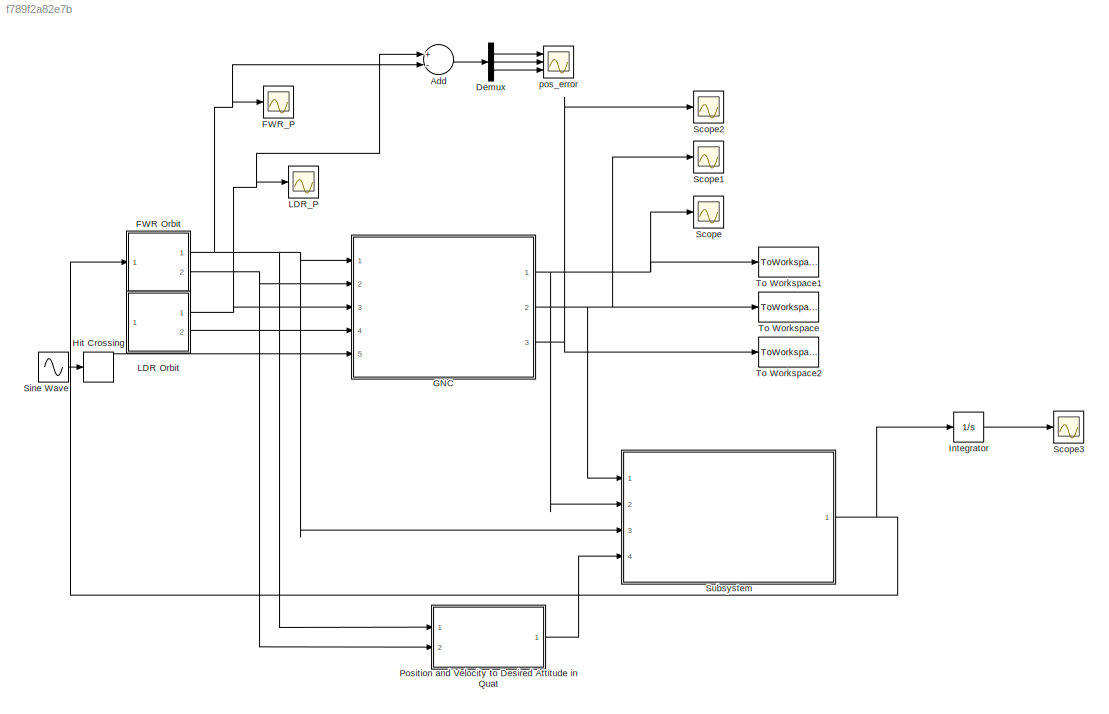
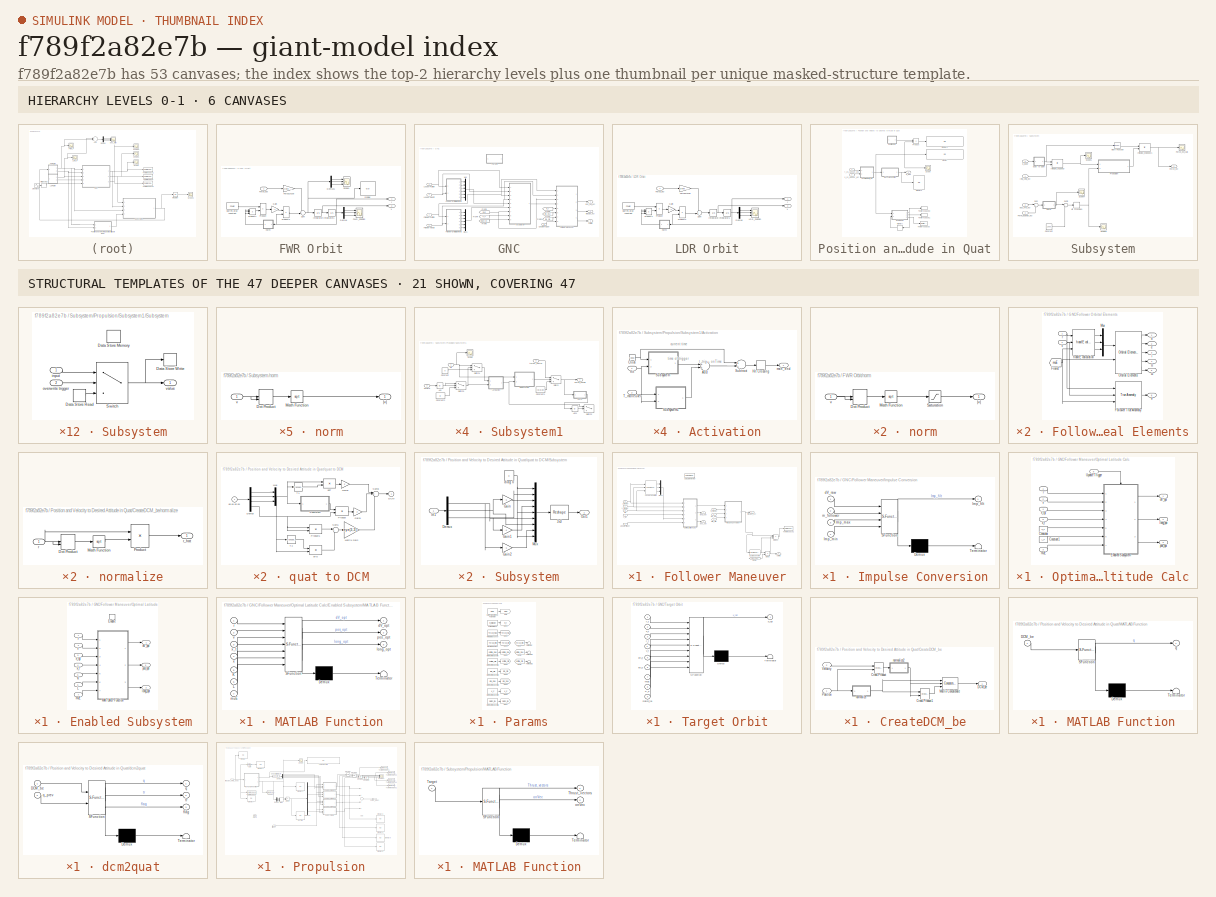
[diagram: thumbnail index - top-2 hierarchy levels (6 canvases) + 21 structural-template representatives of the remaining 47 canvases]
MODEL slx_f789f2a82e7b
KIND model
CONFIG AbsTol = auto
CONFIG EnableMultiTasking = off
CONFIG FixedStep = .2
CONFIG MaxStep = auto
CONFIG MinStep = auto
CONFIG RelTol = 1e-3
CONFIG SampleTimeConstraint = Unconstrained
CONFIG Solver = FixedStepAuto
CONFIG SolverName = FixedStepAuto
CONFIG StartTime = 0.0
CONFIG StopTime = 100*24*60*60
WORKSPACE source: external: MATLAB File  (data not in archive)
BLOCK [Sum] Add
  InputSameDT = off
  Inputs = +-
  OutDataTypeStr = Inherit: Inherit via internal rule
  Ports = [2, 1]
  SaturateOnIntegerOverflow = off
BLOCK [Demux] Demux
  DisplayOption = bar
  Outputs = 3
  Ports = [1, 3]
BLOCK [SubSystem] FWR Orbit
  Ports = [1, 2]
  RequestExecContextInheritance = off
  Variant = off
BLOCK [Demux] FWR Orbit/Demux
  Outputs = 3
  Ports = [1, 3]
BLOCK [Demux] FWR Orbit/Demux1
  Outputs = 3
  Ports = [1, 3]
BLOCK [Display] FWR Orbit/Display
  Decimation = 1
  Ports = [1]
BLOCK [Constant] FWR Orbit/Earth's grav constant
  Value = muE
BLOCK [Scope] FWR Orbit/FWR_Position
  NumInputPorts = 3
  Ports = [3]
  ScopeSpecificationString = Simulink.scopes.TimeScopeBlockCfg('CurrentConfiguration', extmgr.ConfigurationSet(extmgr.Configuration('Core','General UI',true),extmgr.Configuration('Core','Source UI',true),extmgr.Configuration('Sources','WiredSimulink',true,'DataLoggingSaveFormat','StructureWithTime','DataLoggingDecimation','1','DataLoggingDecimateData',true),extmgr.Configuration('Visuals','Time Domain',true,'SerializedDisplays...<+3082ch>
BLOCK [Gain] FWR Orbit/Force2Accel
  Gain = 1/init.CubeSat.M
  OutDataTypeStr = Inherit: Inherit via internal rule
  ParamDataTypeStr = Inherit: Inherit via internal rule
  SaturateOnIntegerOverflow = off
BLOCK [Inport] FWR Orbit/Force_eci
  IconDisplay = Port number
BLOCK [Gain] FWR Orbit/Gain
  Gain = -1
BLOCK [Integrator] FWR Orbit/Integrator
  InitialCondition = init.FWR.V
  Ports = [1, 1]
BLOCK [Integrator] FWR Orbit/Integrator1
  InitialCondition = init.FWR.P
  Ports = [1, 1]
BLOCK [Product] FWR Orbit/Product
  InputSameDT = off
  Inputs = */
  Ports = [2, 1]
  RndMeth = Floor
BLOCK [Product] FWR Orbit/Product1
  InputSameDT = off
  Inputs = ***
  Ports = [3, 1]
  RndMeth = Floor
BLOCK [Product] FWR Orbit/Product2
  InputSameDT = off
  Inputs = **
  Ports = [2, 1]
  RndMeth = Floor
BLOCK [Scope] FWR Orbit/Scope1
  NumInputPorts = 3
  Ports = [3]
  ScopeSpecificationString = Simulink.scopes.TimeScopeBlockCfg('CurrentConfiguration', extmgr.ConfigurationSet(extmgr.Configuration('Core','General UI',true),extmgr.Configuration('Core','Source UI',true),extmgr.Configuration('Sources','WiredSimulink',true,'DataLoggingSaveFormat','StructureWithTime','DataLoggingDecimation','1','DataLoggingDecimateData',true,'DataLoggingVariableName','ScopeData6'),extmgr.Configuration('Visuals'...<+3076ch>
BLOCK [Sum] FWR Orbit/Sum
  IconShape = round
  InputSameDT = off
  Inputs = ++|
  OutDataTypeStr = Inherit: Inherit via internal rule
  Ports = [2, 1]
  SaturateOnIntegerOverflow = off
BLOCK [SubSystem] FWR Orbit/norm
  Ports = [1, 1]
  RequestExecContextInheritance = off
  Variant = off
BLOCK [DotProduct] FWR Orbit/norm/Dot Product
  OutDataTypeStr = Inherit: Inherit via internal rule
BLOCK [Math] FWR Orbit/norm/Math Function
  Operator = sqrt
  Ports = [1, 1]
BLOCK [Saturate] FWR Orbit/norm/Saturation
  InputPortMap = u0
  LowerLimit = 1e-10
  Ports = [1, 1]
  UpperLimit = 1e20
BLOCK [Inport] FWR Orbit/norm/v
  IconDisplay = Port number
BLOCK [Outport] FWR Orbit/norm/|v|
  IconDisplay = Port number
BLOCK [Outport] FWR Orbit/r
  IconDisplay = Port number
BLOCK [Outport] FWR Orbit/v
  IconDisplay = Port number
  Port = 2
BLOCK [Scope] FWR_P
  NumInputPorts = 1
  Ports = [1]
  ScopeSpecificationString = Simulink.scopes.TimeScopeBlockCfg('CurrentConfiguration', extmgr.ConfigurationSet(extmgr.Configuration('Core','General UI',true),extmgr.Configuration('Core','Source UI',true),extmgr.Configuration('Sources','WiredSimulink',true,'DataLoggingVariableName','ScopeData5'),extmgr.Configuration('Visuals','Time Domain',true,'SerializedDisplays',{struct('MinYLimReal','-8449931.71431','MaxYLimReal','8450699....<+1577ch>
BLOCK [SubSystem] GNC
  Ports = [5, 3]
  RequestExecContextInheritance = off
  Variant = off
BLOCK [SubSystem] GNC/Follower Maneuver
  Ports = [8, 4]
  RequestExecContextInheritance = off
  Variant = off
BLOCK [DataStoreMemory] GNC/Follower Maneuver/Data Store Memory
  DataStoreName = man_flag
  ShowAdditionalParam = off
  WriteAfterReadMsg = warning
  WriteAfterWriteMsg = warning
BLOCK [Product] GNC/Follower Maneuver/Divide
  InputSameDT = off
  Inputs = */
  OutDataTypeStr = Inherit: Inherit via internal rule
  Ports = [2, 1]
  RndMeth = Floor
  SaturateOnIntegerOverflow = off
BLOCK [Product] GNC/Follower Maneuver/Divide1
  InputSameDT = off
  Inputs = **/
  OutDataTypeStr = Inherit: Inherit via internal rule
  Ports = [3, 1]
  RndMeth = Floor
  SaturateOnIntegerOverflow = off
BLOCK [Reference] GNC/Follower Maneuver/Euclidean norm  REF=hEemethod/Math Operations/Euclidean norm
  Ports = [1, 1]
  SourceBlock = hEemethod/Math Operations/Euclidean norm
  SourceProductName = HEe Method Library
  SourceType = Euclidean Norm
BLOCK [From] GNC/Follower Maneuver/From4
  GotoTag = Thrust_max
  TagVisibility = global
BLOCK [Inport] GNC/Follower Maneuver/Imp_max
  IconDisplay = Port number
  Port = 6
BLOCK [Inport] GNC/Follower Maneuver/Imp_min
  IconDisplay = Port number
  Port = 7
BLOCK [SubSystem] GNC/Follower Maneuver/Impulse Conversion
  ErrorFcn = Stateflow.Translate.translate
  PermitHierarchicalResolution = ExplicitOnly
  Ports = [4, 1]
  RequestExecContextInheritance = off
  SFBlockType = MATLAB Function
  TreatAsAtomicUnit = on
  Variant = off
BLOCK [Demux] GNC/Follower Maneuver/Impulse Conversion/ Demux 
  Outputs = 1
  Ports = [1, 1]
BLOCK [S-Function] GNC/Follower Maneuver/Impulse Conversion/ SFunction 
  EnableBusSupport = on
  FunctionName = sf_sfun
  PortCounts = [4 2]
  Ports = [4, 2]
  SFcnIsStateOwnerBlock = off
  SFunctionDeploymentMode = off
  Tag = Stateflow S-Function PropulsionTest 4
BLOCK [Terminator] GNC/Follower Maneuver/Impulse Conversion/ Terminator 
BLOCK [Outport] GNC/Follower Maneuver/Impulse Conversion/Imp_filt
  IconDisplay = Port number
BLOCK [Inport] GNC/Follower Maneuver/Impulse Conversion/Imp_max
  IconDisplay = Port number
  Port = 3
BLOCK [Inport] GNC/Follower Maneuver/Impulse Conversion/Imp_min
  IconDisplay = Port number
  Port = 4
BLOCK [Inport] GNC/Follower Maneuver/Impulse Conversion/dV_raw
  IconDisplay = Port number
BLOCK [Inport] GNC/Follower Maneuver/Impulse Conversion/m_follower
  IconDisplay = Port number
  Port = 2
BLOCK [Outport] GNC/Follower Maneuver/Impulse_eci
  IconDisplay = Port number
  Port = 3
BLOCK [Mux] GNC/Follower Maneuver/Mux1
  DisplayOption = bar
  Inputs = 3
  Ports = [3, 1]
BLOCK [SubSystem] GNC/Follower Maneuver/Optimal Latitude Calc
  Ports = [6, 3]
  RequestExecContextInheritance = off
  Variant = off
BLOCK [Constant] GNC/Follower Maneuver/Optimal Latitude Calc/Constant
  Value = K_F
BLOCK [Constant] GNC/Follower Maneuver/Optimal Latitude Calc/Constant1
  Value = L_F
BLOCK [SubSystem] GNC/Follower Maneuver/Optimal Latitude Calc/Enabled Subsystem
  Ports = [7, 3, 1]
  RequestExecContextInheritance = off
  TreatAsAtomicUnit = on
  Variant = off
BLOCK [EnablePort] GNC/Follower Maneuver/Optimal Latitude Calc/Enabled Subsystem/Enable
  Ports = []
BLOCK [Inport] GNC/Follower Maneuver/Optimal Latitude Calc/Enabled Subsystem/K
  IconDisplay = Port number
  Port = 5
BLOCK [Inport] GNC/Follower Maneuver/Optimal Latitude Calc/Enabled Subsystem/L
  IconDisplay = Port number
  Port = 6
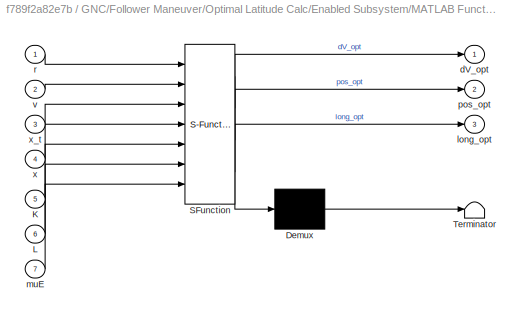
BLOCK [SubSystem] GNC/Follower Maneuver/Optimal Latitude Calc/Enabled Subsystem/MATLAB Function
  ErrorFcn = Stateflow.Translate.translate
  PermitHierarchicalResolution = ExplicitOnly
  Ports = [7, 3]
  RequestExecContextInheritance = off
  SFBlockType = MATLAB Function
  TreatAsAtomicUnit = on
  Variant = off
BLOCK [Demux] GNC/Follower Maneuver/Optimal Latitude Calc/Enabled Subsystem/MATLAB Function/ Demux 
  Outputs = 1
  Ports = [1, 1]
BLOCK [S-Function] GNC/Follower Maneuver/Optimal Latitude Calc/Enabled Subsystem/MATLAB Function/ SFunction 
  EnableBusSupport = on
  FunctionName = sf_sfun
  PortCounts = [7 4]
  Ports = [7, 4]
  SFcnIsStateOwnerBlock = off
  SFunctionDeploymentMode = off
  Tag = Stateflow S-Function PropulsionTest 5
BLOCK [Terminator] GNC/Follower Maneuver/Optimal Latitude Calc/Enabled Subsystem/MATLAB Function/ Terminator 
BLOCK [Inport] GNC/Follower Maneuver/Optimal Latitude Calc/Enabled Subsystem/MATLAB Function/K
  IconDisplay = Port number
  Port = 5
BLOCK [Inport] GNC/Follower Maneuver/Optimal Latitude Calc/Enabled Subsystem/MATLAB Function/L
  IconDisplay = Port number
  Port = 6
BLOCK [Outport] GNC/Follower Maneuver/Optimal Latitude Calc/Enabled Subsystem/MATLAB Function/dV_opt
  IconDisplay = Port number
BLOCK [Outport] GNC/Follower Maneuver/Optimal Latitude Calc/Enabled Subsystem/MATLAB Function/long_opt
  IconDisplay = Port number
  Port = 3
BLOCK [Inport] GNC/Follower Maneuver/Optimal Latitude Calc/Enabled Subsystem/MATLAB Function/muE
  IconDisplay = Port number
  Port = 7
BLOCK [Outport] GNC/Follower Maneuver/Optimal Latitude Calc/Enabled Subsystem/MATLAB Function/pos_opt
  IconDisplay = Port number
  Port = 2
BLOCK [Inport] GNC/Follower Maneuver/Optimal Latitude Calc/Enabled Subsystem/MATLAB Function/r
  IconDisplay = Port number
BLOCK [Inport] GNC/Follower Maneuver/Optimal Latitude Calc/Enabled Subsystem/MATLAB Function/v
  IconDisplay = Port number
  Port = 2
BLOCK [Inport] GNC/Follower Maneuver/Optimal Latitude Calc/Enabled Subsystem/MATLAB Function/x
  IconDisplay = Port number
  Port = 4
BLOCK [Inport] GNC/Follower Maneuver/Optimal Latitude Calc/Enabled Subsystem/MATLAB Function/x_t
  IconDisplay = Port number
  Port = 3
BLOCK [Outport] GNC/Follower Maneuver/Optimal Latitude Calc/Enabled Subsystem/dV_opt
  IconDisplay = Port number
BLOCK [Outport] GNC/Follower Maneuver/Optimal Latitude Calc/Enabled Subsystem/long_opt
  IconDisplay = Port number
  Port = 2
BLOCK [Inport] GNC/Follower Maneuver/Optimal Latitude Calc/Enabled Subsystem/muE 
  IconDisplay = Port number
  Port = 7
BLOCK [Outport] GNC/Follower Maneuver/Optimal Latitude Calc/Enabled Subsystem/pos_opt
  IconDisplay = Port number
  Port = 3
BLOCK [Inport] GNC/Follower Maneuver/Optimal Latitude Calc/Enabled Subsystem/r
  IconDisplay = Port number
BLOCK [Inport] GNC/Follower Maneuver/Optimal Latitude Calc/Enabled Subsystem/v
  IconDisplay = Port number
  Port = 2
BLOCK [Inport] GNC/Follower Maneuver/Optimal Latitude Calc/Enabled Subsystem/x_f
  IconDisplay = Port number
  Port = 4
BLOCK [Inport] GNC/Follower Maneuver/Optimal Latitude Calc/Enabled Subsystem/x_tgt
  IconDisplay = Port number
  Port = 3
BLOCK [Inport] GNC/Follower Maneuver/Optimal Latitude Calc/Update Trigger
  IconDisplay = Port number
  Port = 6
BLOCK [Outport] GNC/Follower Maneuver/Optimal Latitude Calc/dV_opt
  IconDisplay = Port number
BLOCK [Outport] GNC/Follower Maneuver/Optimal Latitude Calc/long_opt
  IconDisplay = Port number
  Port = 2
BLOCK [Inport] GNC/Follower Maneuver/Optimal Latitude Calc/muE
  IconDisplay = Port number
  Port = 3
BLOCK [Outport] GNC/Follower Maneuver/Optimal Latitude Calc/pos_opt
  IconDisplay = Port number
  Port = 3
BLOCK [Inport] GNC/Follower Maneuver/Optimal Latitude Calc/r 
  IconDisplay = Port number
BLOCK [Inport] GNC/Follower Maneuver/Optimal Latitude Calc/v 
  IconDisplay = Port number
  Port = 2
BLOCK [Inport] GNC/Follower Maneuver/Optimal Latitude Calc/x_f
  IconDisplay = Port number
  Port = 5
BLOCK [Inport] GNC/Follower Maneuver/Optimal Latitude Calc/x_tgt
  IconDisplay = Port number
  Port = 4
BLOCK [ToWorkspace] GNC/Follower Maneuver/To Workspace2
  FixptAsFi = on
  MaxDataPoints = inf
  Ports = [1]
  SampleTime = -1
  Save2DSignal = 3-D array (concatenate along third dimension)
  SaveFormat = Timeseries
  VariableName = Thrust_vec
BLOCK [Inport] GNC/Follower Maneuver/Update Trigger
  IconDisplay = Port number
  Port = 8
BLOCK [Reference] GNC/Follower Maneuver/h and E calculation  REF=hEemethod/Math Operations/h and E calculation
  Ports = [3, 3]
  SourceBlock = hEemethod/Math Operations/h and E calculation
  SourceProductName = HEe Method Library
  SourceType = hEe Calculation
BLOCK [Outport] GNC/Follower Maneuver/long_opt
  IconDisplay = Port number
BLOCK [Inport] GNC/Follower Maneuver/m_follower
  IconDisplay = Port number
  Port = 5
BLOCK [Inport] GNC/Follower Maneuver/mu
  IconDisplay = Port number
  Port = 3
BLOCK [Outport] GNC/Follower Maneuver/ontime
  IconDisplay = Port number
  Port = 4
BLOCK [Outport] GNC/Follower Maneuver/pos_opt
  IconDisplay = Port number
  Port = 2
BLOCK [Inport] GNC/Follower Maneuver/r_follower
  IconDisplay = Port number
BLOCK [Inport] GNC/Follower Maneuver/v_follower
  IconDisplay = Port number
  Port = 2
BLOCK [Inport] GNC/Follower Maneuver/x_tgt
  IconDisplay = Port number
  Port = 4
BLOCK [SubSystem] GNC/Follower Orbital Elements
  Ports = [2, 6]
  RequestExecContextInheritance = off
  Variant = off
BLOCK [Reference] GNC/Follower Orbital Elements/Follower True Anomaly  REF=hEemethod/Math Operations/True Anomaly
  Ports = [3, 1]
  SourceBlock = hEemethod/Math Operations/True Anomaly
  SourceProductName = HEe Method Library
  SourceType = True Anomaly
BLOCK [From] GNC/Follower Orbital Elements/From4
  GotoTag = muE
  TagVisibility = global
BLOCK [Mux] GNC/Follower Orbital Elements/Mux
  DisplayOption = bar
  Inputs = 3
  Ports = [3, 1]
BLOCK [Reference] GNC/Follower Orbital Elements/Orbital Elements  REF=hEemethod/Math Operations/Orbital Elements
  Ports = [2, 5]
  SourceBlock = hEemethod/Math Operations/Orbital Elements
  SourceProductName = HEe Method Library
  SourceType = Orbital Elements
BLOCK [Outport] GNC/Follower Orbital Elements/a
  IconDisplay = Port number
BLOCK [Outport] GNC/Follower Orbital Elements/e
  IconDisplay = Port number
  Port = 2
BLOCK [Reference] GNC/Follower Orbital Elements/h and E calculation  REF=hEemethod/Math Operations/h and E calculation
  Ports = [3, 3]
  SourceBlock = hEemethod/Math Operations/h and E calculation
  SourceProductName = HEe Method Library
  SourceType = hEe Calculation
BLOCK [Outport] GNC/Follower Orbital Elements/i
  IconDisplay = Port number
  Port = 3
BLOCK [Inport] GNC/Follower Orbital Elements/r
  IconDisplay = Port number
BLOCK [Inport] GNC/Follower Orbital Elements/v
  IconDisplay = Port number
  Port = 2
BLOCK [Outport] GNC/Follower Orbital Elements/Ω
  IconDisplay = Port number
  Port = 4
BLOCK [Outport] GNC/Follower Orbital Elements/θ
  IconDisplay = Port number
  Port = 6
BLOCK [Outport] GNC/Follower Orbital Elements/ω
  IconDisplay = Port number
  Port = 5
BLOCK [Inport] GNC/Follower Position
  IconDisplay = Port number
BLOCK [Inport] GNC/Follower Velocity
  IconDisplay = Port number
  Port = 2
BLOCK [From] GNC/From1
  GotoTag = m_f
  TagVisibility = global
BLOCK [From] GNC/From2
  GotoTag = Imp_max
  TagVisibility = global
BLOCK [From] GNC/From3
  GotoTag = muE
  TagVisibility = global
BLOCK [From] GNC/From4
  GotoTag = K_F
  TagVisibility = global
BLOCK [From] GNC/From5
  GotoTag = match_tol
  TagVisibility = global
BLOCK [From] GNC/From6
  GotoTag = Imp_min
  TagVisibility = global
BLOCK [Outport] GNC/Impulse_eci
  IconDisplay = Port number
  Port = 2
BLOCK [SubSystem] GNC/Leader Orbital Elements
  Ports = [2, 6]
  RequestExecContextInheritance = off
  Variant = off
BLOCK [Reference] GNC/Leader Orbital Elements/Follower True Anomaly  REF=hEemethod/Math Operations/True Anomaly
  Ports = [3, 1]
  SourceBlock = hEemethod/Math Operations/True Anomaly
  SourceProductName = HEe Method Library
  SourceType = True Anomaly
BLOCK [From] GNC/Leader Orbital Elements/From4
  GotoTag = muE
  TagVisibility = global
BLOCK [Mux] GNC/Leader Orbital Elements/Mux
  DisplayOption = bar
  Inputs = 3
  Ports = [3, 1]
BLOCK [Reference] GNC/Leader Orbital Elements/Orbital Elements  REF=hEemethod/Math Operations/Orbital Elements
  Ports = [2, 5]
  SourceBlock = hEemethod/Math Operations/Orbital Elements
  SourceProductName = HEe Method Library
  SourceType = Orbital Elements
BLOCK [Outport] GNC/Leader Orbital Elements/a
  IconDisplay = Port number
BLOCK [Outport] GNC/Leader Orbital Elements/e
  IconDisplay = Port number
  Port = 2
BLOCK [Reference] GNC/Leader Orbital Elements/h and E calculation  REF=hEemethod/Math Operations/h and E calculation
  Ports = [3, 3]
  SourceBlock = hEemethod/Math Operations/h and E calculation
  SourceProductName = HEe Method Library
  SourceType = hEe Calculation
BLOCK [Outport] GNC/Leader Orbital Elements/i
  IconDisplay = Port number
  Port = 3
BLOCK [Inport] GNC/Leader Orbital Elements/r
  IconDisplay = Port number
BLOCK [Inport] GNC/Leader Orbital Elements/v
  IconDisplay = Port number
  Port = 2
BLOCK [Outport] GNC/Leader Orbital Elements/Ω
  IconDisplay = Port number
  Port = 4
BLOCK [Outport] GNC/Leader Orbital Elements/θ
  IconDisplay = Port number
  Port = 6
BLOCK [Outport] GNC/Leader Orbital Elements/ω
  IconDisplay = Port number
  Port = 5
BLOCK [Inport] GNC/Leader Position
  IconDisplay = Port number
  Port = 3
BLOCK [Inport] GNC/Leader Velocity
  IconDisplay = Port number
  Port = 4
BLOCK [Mux] GNC/Mux
  DisplayOption = bar
  Inputs = 6
  Ports = [6, 1]
BLOCK [Mux] GNC/Mux1
  DisplayOption = bar
  Inputs = 6
  Ports = [6, 1]
BLOCK [SubSystem] GNC/Params
  Ports = []
  RequestExecContextInheritance = off
  Variant = off
BLOCK [Constant] GNC/Params/Earth's Graviational Parameter
  Value = muE
BLOCK [Constant] GNC/Params/Follower Mass
  Value = m_follower
BLOCK [From] GNC/Params/From
  GotoTag = Thrust_min
  TagVisibility = global
BLOCK [From] GNC/Params/From1
  GotoTag = ontime_max
  TagVisibility = global
BLOCK [From] GNC/Params/From2
  GotoTag = ontime_min
  TagVisibility = global
BLOCK [Goto] GNC/Params/Goto
  GotoTag = muE
  TagVisibility = global
BLOCK [Goto] GNC/Params/Goto1
  GotoTag = m_f
  TagVisibility = global
BLOCK [Goto] GNC/Params/Goto2
  GotoTag = Thrust_max
  TagVisibility = global
BLOCK [Goto] GNC/Params/Goto3
  GotoTag = Thrust_min
  TagVisibility = global
BLOCK [Goto] GNC/Params/Goto4
  GotoTag = ontime_max
  TagVisibility = global
BLOCK [Goto] GNC/Params/Goto5
  GotoTag = ontime_min
  TagVisibility = global
BLOCK [Goto] GNC/Params/Goto6
  GotoTag = K_F
  TagVisibility = global
BLOCK [Goto] GNC/Params/Goto7
  GotoTag = match_tol
  TagVisibility = global
BLOCK [Goto] GNC/Params/Goto8
  GotoTag = Imp_min
  TagVisibility = global
BLOCK [Goto] GNC/Params/Goto9
  GotoTag = Imp_max
  TagVisibility = global
BLOCK [Constant] GNC/Params/Maximum Thrust
  Value = Thrust_min
BLOCK [Constant] GNC/Params/Minimum Impulse Bit
  Value = ontime_max
BLOCK [Constant] GNC/Params/Minimum Impulse Bit1
  Value = ontime_min
BLOCK [Constant] GNC/Params/Minimum Impulse Bit2
  Value = Imp_min
BLOCK [Constant] GNC/Params/Minimum Impulse Bit3
  Value = Imp_max
BLOCK [Constant] GNC/Params/Minimum Impulse Bit4
  Value = K_F
BLOCK [Constant] GNC/Params/Minimum Impulse Bit5
  Value = match_tol
BLOCK [Terminator] GNC/Params/Terminator
BLOCK [Terminator] GNC/Params/Terminator1
BLOCK [Terminator] GNC/Params/Terminator2
BLOCK [Constant] GNC/Params/Time for Manuever
  Value = Thrust_max
BLOCK [SubSystem] GNC/Target Orbit
  ErrorFcn = Stateflow.Translate.translate
  PermitHierarchicalResolution = ExplicitOnly
  Ports = [9, 1]
  RequestExecContextInheritance = off
  SFBlockType = MATLAB Function
  TreatAsAtomicUnit = on
  Variant = off
BLOCK [Demux] GNC/Target Orbit/ Demux 
  Outputs = 1
  Ports = [1, 1]
BLOCK [S-Function] GNC/Target Orbit/ SFunction 
  EnableBusSupport = on
  FunctionName = sf_sfun
  PortCounts = [9 2]
  Ports = [9, 2]
  SFcnIsStateOwnerBlock = off
  SFunctionDeploymentMode = off
  Tag = Stateflow S-Function PropulsionTest 10
BLOCK [Terminator] GNC/Target Orbit/ Terminator 
BLOCK [Inport] GNC/Target Orbit/K_F
  IconDisplay = Port number
  Port = 8
BLOCK [Inport] GNC/Target Orbit/els_f
  IconDisplay = Port number
  Port = 6
BLOCK [Inport] GNC/Target Orbit/els_t
  IconDisplay = Port number
  Port = 5
BLOCK [Inport] GNC/Target Orbit/match_tol
  IconDisplay = Port number
  Port = 9
BLOCK [Inport] GNC/Target Orbit/muE
  IconDisplay = Port number
  Port = 7
BLOCK [Inport] GNC/Target Orbit/r_f
  IconDisplay = Port number
  Port = 3
BLOCK [Inport] GNC/Target Orbit/r_t
  IconDisplay = Port number
BLOCK [Inport] GNC/Target Orbit/v_f
  IconDisplay = Port number
  Port = 4
BLOCK [Inport] GNC/Target Orbit/v_t
  IconDisplay = Port number
  Port = 2
BLOCK [Outport] GNC/Target Orbit/x_tgt
  IconDisplay = Port number
BLOCK [Inport] GNC/Update Trigger
  IconDisplay = Port number
  Port = 5
BLOCK [Outport] GNC/ontime
  IconDisplay = Port number
  Port = 3
BLOCK [Outport] GNC/pos_opt_eci
  IconDisplay = Port number
BLOCK [HitCross] Hit Crossing
  HitCrossingDirection = rising
  HitCrossingOffset = 0.5
  Ports = [1, 1]
BLOCK [Integrator] Integrator
  InitialCondition = [0;0;0]
  Ports = [1, 1]
BLOCK [SubSystem] LDR Orbit
  Ports = [1, 2]
  RequestExecContextInheritance = off
  Variant = off
BLOCK [Demux] LDR Orbit/Demux
  Outputs = 3
  Ports = [1, 3]
BLOCK [Constant] LDR Orbit/Earth's grav constant
  Value = muE
BLOCK [Gain] LDR Orbit/Force2Accel
  Gain = 1/init.CubeSat.M
  OutDataTypeStr = Inherit: Inherit via internal rule
  ParamDataTypeStr = Inherit: Inherit via internal rule
  SaturateOnIntegerOverflow = off
BLOCK [Inport] LDR Orbit/Force_eci
  IconDisplay = Port number
BLOCK [Gain] LDR Orbit/Gain
  Gain = -1
BLOCK [Integrator] LDR Orbit/Integrator
  InitialCondition = init.LDR.V
  Ports = [1, 1]
BLOCK [Integrator] LDR Orbit/Integrator1
  InitialCondition = init.LDR.P
  Ports = [1, 1]
BLOCK [Scope] LDR Orbit/LDR_Position
  NumInputPorts = 3
  Ports = [3]
  ScopeSpecificationString = Simulink.scopes.TimeScopeBlockCfg('CurrentConfiguration', extmgr.ConfigurationSet(extmgr.Configuration('Core','General UI',true),extmgr.Configuration('Core','Source UI',true),extmgr.Configuration('Sources','WiredSimulink',true,'DataLoggingSaveFormat','StructureWithTime','DataLoggingDecimation','1','DataLoggingDecimateData',true),extmgr.Configuration('Visuals','Time Domain',true,'SerializedDisplays...<+3061ch>
BLOCK [Product] LDR Orbit/Product
  InputSameDT = off
  Inputs = */
  Ports = [2, 1]
  RndMeth = Floor
BLOCK [Product] LDR Orbit/Product1
  InputSameDT = off
  Inputs = ***
  Ports = [3, 1]
  RndMeth = Floor
BLOCK [Product] LDR Orbit/Product2
  InputSameDT = off
  Inputs = **
  Ports = [2, 1]
  RndMeth = Floor
BLOCK [Sum] LDR Orbit/Sum
  IconShape = round
  InputSameDT = off
  Inputs = ++|
  OutDataTypeStr = Inherit: Inherit via internal rule
  Ports = [2, 1]
  SaturateOnIntegerOverflow = off
BLOCK [SubSystem] LDR Orbit/norm
  Ports = [1, 1]
  RequestExecContextInheritance = off
  Variant = off
BLOCK [DotProduct] LDR Orbit/norm/Dot Product
  OutDataTypeStr = Inherit: Inherit via internal rule
BLOCK [Math] LDR Orbit/norm/Math Function
  Operator = sqrt
  Ports = [1, 1]
BLOCK [Saturate] LDR Orbit/norm/Saturation
  InputPortMap = u0
  LowerLimit = 1e-10
  Ports = [1, 1]
  UpperLimit = 1e20
BLOCK [Inport] LDR Orbit/norm/v
  IconDisplay = Port number
BLOCK [Outport] LDR Orbit/norm/|v|
  IconDisplay = Port number
BLOCK [Outport] LDR Orbit/r
  IconDisplay = Port number
BLOCK [Outport] LDR Orbit/v
  IconDisplay = Port number
  Port = 2
BLOCK [Scope] LDR_P
  NumInputPorts = 1
  Ports = [1]
  ScopeSpecificationString = Simulink.scopes.TimeScopeBlockCfg('CurrentConfiguration', extmgr.ConfigurationSet(extmgr.Configuration('Core','General UI',true),extmgr.Configuration('Core','Source UI',true),extmgr.Configuration('Sources','WiredSimulink',true,'DataLoggingVariableName','ScopeData6'),extmgr.Configuration('Visuals','Time Domain',true,'SerializedDisplays',{struct('MinYLimReal','-8450795.74844','MaxYLimReal','8450795....<+1505ch>
BLOCK [SubSystem] Position and Velocity to Desired Attitude in Quat
  Ports = [2, 1]
  RequestExecContextInheritance = off
  Variant = off
BLOCK [SubSystem] Position and Velocity to Desired Attitude in Quat/CreateDCM_be
  Ports = [2, 1]
  RequestExecContextInheritance = off
  Variant = off
BLOCK [Reference] Position and Velocity to Desired Attitude in Quat/CreateDCM_be/Cross Product  REF=vrlib/Utilities/Cross Product
  Ports = [2, 1]
  SourceBlock = vrlib/Utilities/Cross Product
  SourceProductBaseCode = VR
  SourceProductName = Simulink 3D Animation
  SourceType = Cross Product
BLOCK [Reference] Position and Velocity to Desired Attitude in Quat/CreateDCM_be/Cross Product1  REF=vrlib/Utilities/Cross Product
  Ports = [2, 1]
  SourceBlock = vrlib/Utilities/Cross Product
  SourceProductBaseCode = VR
  SourceProductName = Simulink 3D Animation
  SourceType = Cross Product
BLOCK [Outport] Position and Velocity to Desired Attitude in Quat/CreateDCM_be/DCM_be
  IconDisplay = Port number
BLOCK [Concatenate] Position and Velocity to Desired Attitude in Quat/CreateDCM_be/Matrix Concatenate
  ConcatenateDimension = 2
  Mode = Multidimensional array
  NumInputs = 3
  Ports = [3, 1]
BLOCK [Inport] Position and Velocity to Desired Attitude in Quat/CreateDCM_be/Position
  IconDisplay = Port number
BLOCK [Inport] Position and Velocity to Desired Attitude in Quat/CreateDCM_be/Velocity
  IconDisplay = Port number
  Port = 2
BLOCK [SubSystem] Position and Velocity to Desired Attitude in Quat/CreateDCM_be/normalize
  Ports = [1, 1]
  RequestExecContextInheritance = off
  Variant = off
BLOCK [DotProduct] Position and Velocity to Desired Attitude in Quat/CreateDCM_be/normalize/Dot Product
  OutDataTypeStr = Inherit: Inherit via internal rule
BLOCK [Math] Position and Velocity to Desired Attitude in Quat/CreateDCM_be/normalize/Math Function
  Operator = sqrt
  Ports = [1, 1]
BLOCK [Product] Position and Velocity to Desired Attitude in Quat/CreateDCM_be/normalize/Product
  Inputs = */
  Ports = [2, 1]
  RndMeth = Floor
BLOCK [Inport] Position and Velocity to Desired Attitude in Quat/CreateDCM_be/normalize/r
  IconDisplay = Port number
BLOCK [Outport] Position and Velocity to Desired Attitude in Quat/CreateDCM_be/normalize/r_hat
  IconDisplay = Port number
BLOCK [SubSystem] Position and Velocity to Desired Attitude in Quat/CreateDCM_be/normalize2
  Ports = [1, 1]
  RequestExecContextInheritance = off
  Variant = off
BLOCK [DotProduct] Position and Velocity to Desired Attitude in Quat/CreateDCM_be/normalize2/Dot Product
  OutDataTypeStr = Inherit: Inherit via internal rule
BLOCK [Math] Position and Velocity to Desired Attitude in Quat/CreateDCM_be/normalize2/Math Function
  Operator = sqrt
  Ports = [1, 1]
BLOCK [Product] Position and Velocity to Desired Attitude in Quat/CreateDCM_be/normalize2/Product
  Inputs = */
  Ports = [2, 1]
  RndMeth = Floor
BLOCK [Inport] Position and Velocity to Desired Attitude in Quat/CreateDCM_be/normalize2/v
  IconDisplay = Port number
BLOCK [Outport] Position and Velocity to Desired Attitude in Quat/CreateDCM_be/normalize2/v_hat
  IconDisplay = Port number
BLOCK [Display] Position and Velocity to Desired Attitude in Quat/Display
  Decimation = 1
  Ports = [1]
BLOCK [Display] Position and Velocity to Desired Attitude in Quat/Display1
  Decimation = 1
  Ports = [1]
BLOCK [Display] Position and Velocity to Desired Attitude in Quat/Display2
  Decimation = 1
  Ports = [1]
BLOCK [SubSystem] Position and Velocity to Desired Attitude in Quat/MATLAB Function
  ErrorFcn = Stateflow.Translate.translate
  PermitHierarchicalResolution = ExplicitOnly
  Ports = [1, 1]
  RequestExecContextInheritance = off
  SFBlockType = MATLAB Function
  TreatAsAtomicUnit = on
  Variant = off
BLOCK [Demux] Position and Velocity to Desired Attitude in Quat/MATLAB Function/ Demux 
  Outputs = 1
  Ports = [1, 1]
BLOCK [S-Function] Position and Velocity to Desired Attitude in Quat/MATLAB Function/ SFunction 
  EnableBusSupport = on
  FunctionName = sf_sfun
  PortCounts = [1 2]
  Ports = [1, 2]
  SFcnIsStateOwnerBlock = off
  SFunctionDeploymentMode = off
  Tag = Stateflow S-Function PropulsionTest 14
BLOCK [Terminator] Position and Velocity to Desired Attitude in Quat/MATLAB Function/ Terminator 
BLOCK [Inport] Position and Velocity to Desired Attitude in Quat/MATLAB Function/DCM_be
  IconDisplay = Port number
BLOCK [Outport] Position and Velocity to Desired Attitude in Quat/MATLAB Function/q
  IconDisplay = Port number
BLOCK [Memory] Position and Velocity to Desired Attitude in Quat/Memory
  Commented = on
BLOCK [Product] Position and Velocity to Desired Attitude in Quat/Product
  InputSameDT = off
  Multiplication = Matrix(*)
  OutDataTypeStr = Inherit: Inherit via internal rule
  Ports = [2, 1]
  RndMeth = Floor
  SaturateOnIntegerOverflow = off
BLOCK [Scope] Position and Velocity to Desired Attitude in Quat/Scope
  NumInputPorts = 1
  Ports = [1]
  ScopeSpecificationString = Simulink.scopes.TimeScopeBlockCfg('CurrentConfiguration', extmgr.ConfigurationSet(extmgr.Configuration('Core','General UI',true),extmgr.Configuration('Core','Source UI',true),extmgr.Configuration('Sources','WiredSimulink',true,'DataLoggingVariableName','ScopeData5'),extmgr.Configuration('Visuals','Time Domain',true,'SerializedDisplays',{struct('MinYLimReal','-1.25','MaxYLimReal','1.25','YLabelReal...<+1544ch>
BLOCK [ToWorkspace] Position and Velocity to Desired Attitude in Quat/To Workspace1
  Commented = on
  FixptAsFi = on
  MaxDataPoints = inf
  Ports = [1]
  SampleTime = -1
  Save2DSignal = 3-D array (concatenate along third dimension)
  VariableName = tr
BLOCK [ToWorkspace] Position and Velocity to Desired Attitude in Quat/To Workspace2
  Commented = on
  FixptAsFi = on
  MaxDataPoints = inf
  Ports = [1]
  SampleTime = -1
  Save2DSignal = 3-D array (concatenate along third dimension)
  VariableName = q
BLOCK [ToWorkspace] Position and Velocity to Desired Attitude in Quat/To Workspace3
  Commented = on
  FixptAsFi = on
  MaxDataPoints = inf
  Ports = [1]
  SampleTime = -1
  Save2DSignal = 3-D array (concatenate along third dimension)
  VariableName = flag
BLOCK [SubSystem] Position and Velocity to Desired Attitude in Quat/dcm2quat
  Commented = on
  ErrorFcn = Stateflow.Translate.translate
  PermitHierarchicalResolution = ExplicitOnly
  Ports = [2, 3]
  RequestExecContextInheritance = off
  SFBlockType = MATLAB Function
  TreatAsAtomicUnit = on
  Variant = off
BLOCK [Demux] Position and Velocity to Desired Attitude in Quat/dcm2quat/ Demux 
  Outputs = 1
  Ports = [1, 1]
BLOCK [S-Function] Position and Velocity to Desired Attitude in Quat/dcm2quat/ SFunction 
  EnableBusSupport = on
  FunctionName = sf_sfun
  PortCounts = [2 4]
  Ports = [2, 4]
  SFcnIsStateOwnerBlock = off
  SFunctionDeploymentMode = off
  Tag = Stateflow S-Function PropulsionTest 15
BLOCK [Terminator] Position and Velocity to Desired Attitude in Quat/dcm2quat/ Terminator 
BLOCK [Inport] Position and Velocity to Desired Attitude in Quat/dcm2quat/DCM_be
  IconDisplay = Port number
BLOCK [Outport] Position and Velocity to Desired Attitude in Quat/dcm2quat/flag
  IconDisplay = Port number
  Port = 3
BLOCK [Outport] Position and Velocity to Desired Attitude in Quat/dcm2quat/q
  IconDisplay = Port number
BLOCK [Inport] Position and Velocity to Desired Attitude in Quat/dcm2quat/q_prev
  IconDisplay = Port number
  Port = 2
BLOCK [Outport] Position and Velocity to Desired Attitude in Quat/dcm2quat/tr
  IconDisplay = Port number
  Port = 2
BLOCK [Outport] Position and Velocity to Desired Attitude in Quat/q_des
  IconDisplay = Port number
BLOCK [SubSystem] Position and Velocity to Desired Attitude in Quat/quat to DCM
  Ports = [1, 1]
  RequestExecContextInheritance = off
  ShowPortLabels = none
  Variant = off
BLOCK [Outport] Position and Velocity to Desired Attitude in Quat/quat to DCM/DCM
  IconDisplay = Port number
  InitialOutput = 0
BLOCK [Demux] Position and Velocity to Desired Attitude in Quat/quat to DCM/Demux
  Ports = [1, 4]
BLOCK [Gain] Position and Velocity to Desired Attitude in Quat/quat to DCM/Gain1
  Gain = 2
BLOCK [Gain] Position and Velocity to Desired Attitude in Quat/quat to DCM/Gain2
  Gain = 2
BLOCK [Gain] Position and Velocity to Desired Attitude in Quat/quat to DCM/Matrix Gain
  Gain = eye(3,3)
BLOCK [Mux] Position and Velocity to Desired Attitude in Quat/quat to DCM/Mux
  DisplayOption = bar
  Inputs = 3
  Ports = [3, 1]
BLOCK [Product] Position and Velocity to Desired Attitude in Quat/quat to DCM/Product
  Ports = [2, 1]
  RndMeth = Floor
BLOCK [Product] Position and Velocity to Desired Attitude in Quat/quat to DCM/Product1
  Ports = [2, 1]
  RndMeth = Floor
BLOCK [SubSystem] Position and Velocity to Desired Attitude in Quat/quat to DCM/Subsystem
  Ports = [1, 1]
  RequestExecContextInheritance = off
  Variant = off
BLOCK [Reshape] Position and Velocity to Desired Attitude in Quat/quat to DCM/Subsystem/3x3
  OutputDimensionality = Customize
  OutputDimensions = [3,3]
  Ports = [1, 1]
BLOCK [Demux] Position and Velocity to Desired Attitude in Quat/quat to DCM/Subsystem/Demux
  Outputs = 3
  Ports = [1, 3]
BLOCK [Gain] Position and Velocity to Desired Attitude in Quat/quat to DCM/Subsystem/Gain
  Gain = -1
BLOCK [Gain] Position and Velocity to Desired Attitude in Quat/quat to DCM/Subsystem/Gain1
  Gain = -1
BLOCK [Gain] Position and Velocity to Desired Attitude in Quat/quat to DCM/Subsystem/Gain2
  Gain = -1
BLOCK [Inport] Position and Velocity to Desired Attitude in Quat/quat to DCM/Subsystem/In1
  IconDisplay = Port number
BLOCK [Mux] Position and Velocity to Desired Attitude in Quat/quat to DCM/Subsystem/Mux
  DisplayOption = bar
  Inputs = 9
  Ports = [9, 1]
BLOCK [Outport] Position and Velocity to Desired Attitude in Quat/quat to DCM/Subsystem/Out1
  IconDisplay = Port number
BLOCK [Constant] Position and Velocity to Desired Attitude in Quat/quat to DCM/Subsystem/diag 0 
  Value = 0
BLOCK [Sum] Position and Velocity to Desired Attitude in Quat/quat to DCM/Sum1
  IconShape = round
  Inputs = |+-
  Ports = [2, 1]
BLOCK [Sum] Position and Velocity to Desired Attitude in Quat/quat to DCM/Sum8
  IconShape = round
  Inputs = |+-+
  Ports = [3, 1]
BLOCK [Math] Position and Velocity to Desired Attitude in Quat/quat to DCM/T1
  Operator = transpose
  Ports = [1, 1]
BLOCK [Math] Position and Velocity to Desired Attitude in Quat/quat to DCM/T2
  Operator = transpose
  Ports = [1, 1]
BLOCK [Inport] Position and Velocity to Desired Attitude in Quat/quat to DCM/e0 e1 e2 e3
  IconDisplay = Port number
BLOCK [Product] Position and Velocity to Desired Attitude in Quat/quat to DCM/qTq
  Multiplication = Matrix(*)
  Ports = [2, 1]
  RndMeth = Floor
BLOCK [Product] Position and Velocity to Desired Attitude in Quat/quat to DCM/qqT
  Multiplication = Matrix(*)
  Ports = [2, 1]
  RndMeth = Floor
BLOCK [Inport] Position and Velocity to Desired Attitude in Quat/r_cs_sensor_eci
  IconDisplay = Port number
BLOCK [Inport] Position and Velocity to Desired Attitude in Quat/v_cs_sensor_eci
  IconDisplay = Port number
  Port = 2
BLOCK [Scope] Scope
  NumInputPorts = 1
  Ports = [1]
  ScopeSpecificationString = Simulink.scopes.TimeScopeBlockCfg('CurrentConfiguration', extmgr.ConfigurationSet(extmgr.Configuration('Core','General UI',true),extmgr.Configuration('Core','Source UI',true),extmgr.Configuration('Sources','WiredSimulink',true,'DataLoggingVariableName','ScopeData1'),extmgr.Configuration('Visuals','Time Domain',true,'SerializedDisplays',{struct('MinYLimReal','-8450794.93868','MaxYLimReal','8450795....<+1555ch>
BLOCK [Scope] Scope1
  NumInputPorts = 1
  Ports = [1]
  ScopeSpecificationString = Simulink.scopes.TimeScopeBlockCfg('CurrentConfiguration', extmgr.ConfigurationSet(extmgr.Configuration('Core','General UI',true),extmgr.Configuration('Core','Source UI',true),extmgr.Configuration('Sources','WiredSimulink',true,'DataLoggingVariableName','ScopeData2'),extmgr.Configuration('Visuals','Time Domain',true,'SerializedDisplays',{struct('MinYLimReal','-1.25','MaxYLimReal','1.25','YLabelReal...<+1539ch>
BLOCK [Scope] Scope2
  NumInputPorts = 1
  Ports = [1]
  ScopeSpecificationString = Simulink.scopes.TimeScopeBlockCfg('CurrentConfiguration', extmgr.ConfigurationSet(extmgr.Configuration('Core','General UI',true),extmgr.Configuration('Core','Source UI',true),extmgr.Configuration('Sources','WiredSimulink',true),extmgr.Configuration('Visuals','Time Domain',true,'SerializedDisplays',{struct('MinYLimReal','-0.125','MaxYLimReal','1.125','YLabelReal','','MinYLimMag','0.00000','MaxYLimM...<+1368ch>
BLOCK [Scope] Scope3
  NumInputPorts = 1
  Ports = [1]
  ScopeSpecificationString = Simulink.scopes.TimeScopeBlockCfg('CurrentConfiguration', extmgr.ConfigurationSet(extmgr.Configuration('Core','General UI',true),extmgr.Configuration('Core','Source UI',true),extmgr.Configuration('Sources','WiredSimulink',true,'DataLoggingVariableName','ScopeData7'),extmgr.Configuration('Visuals','Time Domain',true,'SerializedDisplays',{struct('MinYLimReal','-0.02779','MaxYLimReal','0.02762','YLab...<+1553ch>
BLOCK [Sin] Sine Wave
  Frequency = 2*pi/550
  Ports = [0, 1]
  SampleTime = 0
BLOCK [SubSystem] Subsystem
  Ports = [4, 1]
  RequestExecContextInheritance = off
  Variant = off
BLOCK [Constant] Subsystem/Constant
  Value = 1000
BLOCK [Inport] Subsystem/FWR_position_eci
  IconDisplay = Port number
  Port = 3
BLOCK [Outport] Subsystem/Force_eci
  IconDisplay = Port number
BLOCK [Scope] Subsystem/Force_eci_calc
  NumInputPorts = 1
  Ports = [1]
  ScopeSpecificationString = Simulink.scopes.TimeScopeBlockCfg('CurrentConfiguration', extmgr.ConfigurationSet(extmgr.Configuration('Core','General UI',true),extmgr.Configuration('Core','Source UI',true),extmgr.Configuration('Sources','WiredSimulink',true,'DataLoggingVariableName','ScopeData3'),extmgr.Configuration('Visuals','Time Domain',true,'SerializedDisplays',{struct('MinYLimReal','-0.02692','MaxYLimReal','0.02672','YLab...<+1600ch>
BLOCK [HitCross] Subsystem/Hit Crossing1
  HitCrossingDirection = falling
  Ports = [1, 1]
BLOCK [Inport] Subsystem/Imp_cmd_eci
  IconDisplay = Port number
BLOCK [Product] Subsystem/Impulse_eci2body
  InputSameDT = off
  Multiplication = Matrix(*)
  OutDataTypeStr = Inherit: Inherit via internal rule
  Ports = [2, 1]
  RndMeth = Floor
  SaturateOnIntegerOverflow = off
BLOCK [Product] Subsystem/Impulse_eci2body1
  InputSameDT = off
  Multiplication = Matrix(*)
  OutDataTypeStr = Inherit: Inherit via internal rule
  Ports = [2, 1]
  RndMeth = Floor
  SaturateOnIntegerOverflow = off
BLOCK [Math] Subsystem/Math Function
  Operator = transpose
  Ports = [1, 1]
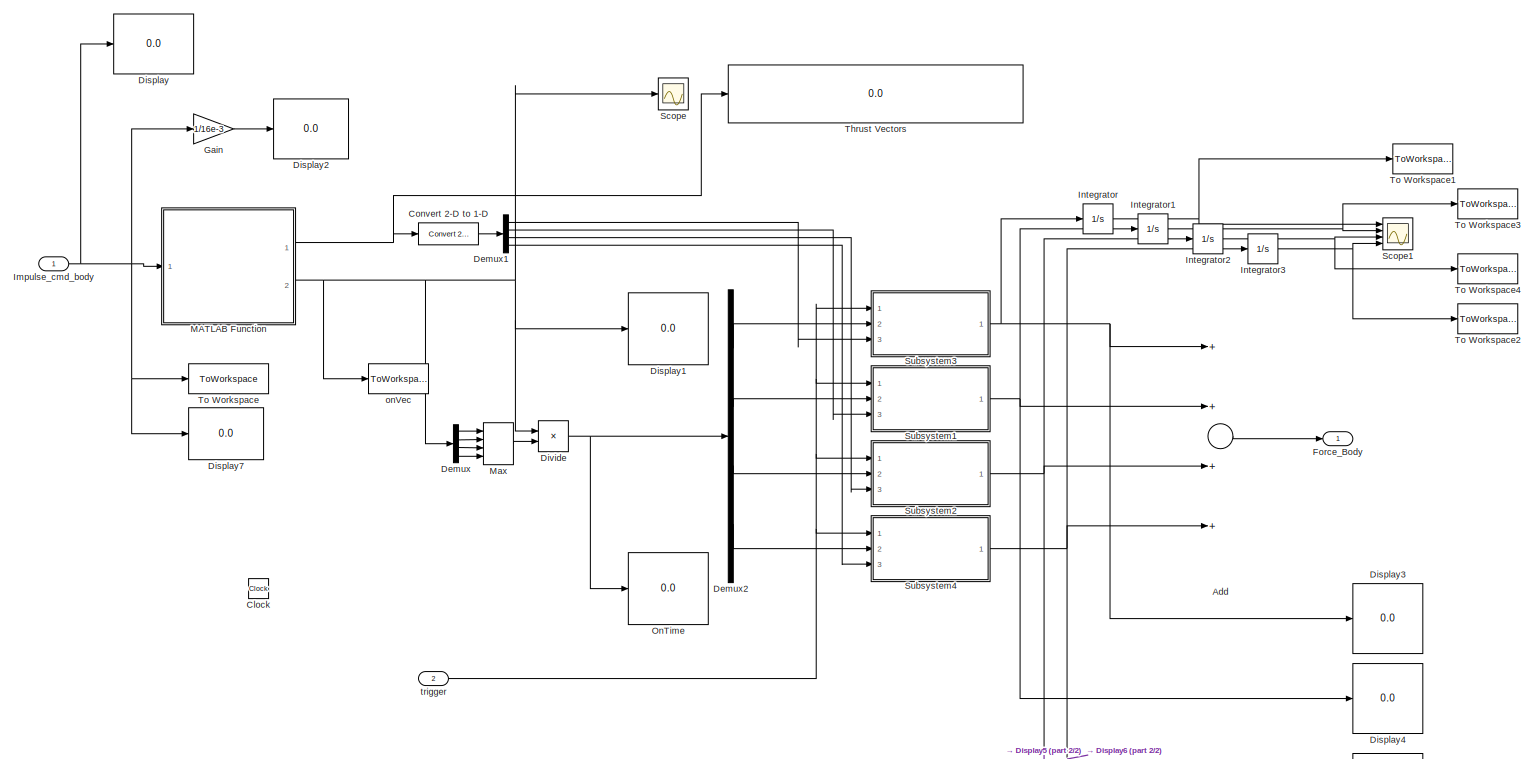
[diagram: Subsystem/Propulsion - part 1/2, most of the canvas]
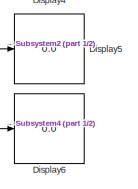
[diagram: Subsystem/Propulsion - part 2/2, bottom right region]
BLOCK [SubSystem] Subsystem/Propulsion
  Ports = [2, 1]
  RequestExecContextInheritance = off
  Variant = off
BLOCK [Sum] Subsystem/Propulsion/Add
  InputSameDT = off
  Inputs = ++++
  OutDataTypeStr = Inherit: Inherit via internal rule
  Ports = [4, 1]
  SaturateOnIntegerOverflow = off
BLOCK [Clock] Subsystem/Propulsion/Clock
BLOCK [Reference] Subsystem/Propulsion/Convert 2-D to 1-D  REF=dspsigattribs/Convert 2-D to 1-D
  Ports = [1, 1]
  SourceBlock = dspsigattribs/Convert 2-D to 1-D
  SourceProductBaseCode = DS
  SourceProductName = DSP System Toolbox
  SourceType = Convert 2-D to 1-D
BLOCK [Demux] Subsystem/Propulsion/Demux
  DisplayOption = bar
  Ports = [1, 4]
BLOCK [Demux] Subsystem/Propulsion/Demux1
  DisplayOption = bar
  Ports = [1, 4]
BLOCK [Demux] Subsystem/Propulsion/Demux2
  DisplayOption = bar
  Ports = [1, 4]
BLOCK [Display] Subsystem/Propulsion/Display
  Decimation = 1
  Ports = [1]
BLOCK [Display] Subsystem/Propulsion/Display1
  Decimation = 1
  Ports = [1]
BLOCK [Display] Subsystem/Propulsion/Display2
  Decimation = 1
  Ports = [1]
BLOCK [Display] Subsystem/Propulsion/Display3
  Decimation = 1
  Ports = [1]
BLOCK [Display] Subsystem/Propulsion/Display4
  Decimation = 1
  Ports = [1]
BLOCK [Display] Subsystem/Propulsion/Display5
  Decimation = 1
  Ports = [1]
BLOCK [Display] Subsystem/Propulsion/Display6
  Decimation = 1
  Ports = [1]
BLOCK [Display] Subsystem/Propulsion/Display7
  Decimation = 1
  Ports = [1]
BLOCK [Product] Subsystem/Propulsion/Divide
  InputSameDT = off
  Inputs = */
  OutDataTypeStr = Inherit: Inherit via internal rule
  Ports = [2, 1]
  RndMeth = Floor
  SaturateOnIntegerOverflow = off
BLOCK [Outport] Subsystem/Propulsion/Force_Body
  IconDisplay = Port number
BLOCK [Gain] Subsystem/Propulsion/Gain
  Gain = 1/16e-3
  OutDataTypeStr = Inherit: Inherit via internal rule
  ParamDataTypeStr = Inherit: Inherit via internal rule
  SaturateOnIntegerOverflow = off
BLOCK [Inport] Subsystem/Propulsion/Impulse_cmd_body
  IconDisplay = Port number
BLOCK [Integrator] Subsystem/Propulsion/Integrator
  InitialCondition = [0;0;0]
  Ports = [1, 1]
BLOCK [Integrator] Subsystem/Propulsion/Integrator1
  InitialCondition = [0;0;0]
  Ports = [1, 1]
BLOCK [Integrator] Subsystem/Propulsion/Integrator2
  InitialCondition = [0;0;0]
  Ports = [1, 1]
BLOCK [Integrator] Subsystem/Propulsion/Integrator3
  InitialCondition = [0;0;0]
  Ports = [1, 1]
BLOCK [SubSystem] Subsystem/Propulsion/MATLAB Function
  ErrorFcn = Stateflow.Translate.translate
  PermitHierarchicalResolution = ExplicitOnly
  Ports = [1, 2]
  RequestExecContextInheritance = off
  SFBlockType = MATLAB Function
  TreatAsAtomicUnit = on
  Variant = off
BLOCK [Demux] Subsystem/Propulsion/MATLAB Function/ Demux 
  Outputs = 1
  Ports = [1, 1]
BLOCK [S-Function] Subsystem/Propulsion/MATLAB Function/ SFunction 
  EnableBusSupport = on
  FunctionName = sf_sfun
  PortCounts = [1 3]
  Ports = [1, 3]
  SFcnIsStateOwnerBlock = off
  SFunctionDeploymentMode = off
  Tag = Stateflow S-Function PropulsionTest 17
BLOCK [Terminator] Subsystem/Propulsion/MATLAB Function/ Terminator 
BLOCK [Inport] Subsystem/Propulsion/MATLAB Function/Target
  IconDisplay = Port number
BLOCK [Outport] Subsystem/Propulsion/MATLAB Function/Thrust_vectors
  IconDisplay = Port number
BLOCK [Outport] Subsystem/Propulsion/MATLAB Function/onVec
  IconDisplay = Port number
  Port = 2
BLOCK [MinMax] Subsystem/Propulsion/Max
  Function = max
  InputSameDT = off
  Inputs = 4
  Ports = [4, 1]
  SaturateOnIntegerOverflow = off
BLOCK [Display] Subsystem/Propulsion/OnTime
  Decimation = 1
  Ports = [1]
BLOCK [Scope] Subsystem/Propulsion/Scope
  NumInputPorts = 1
  Ports = [1]
  ScopeSpecificationString = Simulink.scopes.TimeScopeBlockCfg('CurrentConfiguration', extmgr.ConfigurationSet(extmgr.Configuration('Core','General UI',true),extmgr.Configuration('Core','Source UI',true),extmgr.Configuration('Sources','WiredSimulink',true,'DataLoggingVariableName','ScopeData7'),extmgr.Configuration('Visuals','Time Domain',true,'SerializedDisplays',{struct('MinYLimReal','-10.79272','MaxYLimReal','97.1345','YLa...<+1638ch>
BLOCK [Scope] Subsystem/Propulsion/Scope1
  NumInputPorts = 4
  Ports = [4]
  ScopeSpecificationString = Simulink.scopes.TimeScopeBlockCfg('CurrentConfiguration', extmgr.ConfigurationSet(extmgr.Configuration('Core','General UI',true),extmgr.Configuration('Core','Source UI',true),extmgr.Configuration('Sources','WiredSimulink',true,'DataLoggingVariableName','ScopeData1'),extmgr.Configuration('Visuals','Time Domain',true,'SerializedDisplays',{struct('MinYLimReal','-2.5671','MaxYLimReal','3.18634','YLabe...<+3720ch>
BLOCK [SubSystem] Subsystem/Propulsion/Subsystem1
  Ports = [3, 1]
  RequestExecContextInheritance = off
  Variant = off
BLOCK [Abs] Subsystem/Propulsion/Subsystem1/Abs
  SaturateOnIntegerOverflow = off
BLOCK [Abs] Subsystem/Propulsion/Subsystem1/Abs1
  SaturateOnIntegerOverflow = off
BLOCK [SubSystem] Subsystem/Propulsion/Subsystem1/Activation
  Ports = [2, 1]
  RequestExecContextInheritance = off
  Variant = off
BLOCK [Sum] Subsystem/Propulsion/Subsystem1/Activation/Add
  InputSameDT = off
  OutDataTypeStr = Inherit: Inherit via internal rule
  Ports = [2, 1]
  SaturateOnIntegerOverflow = off
BLOCK [Clock] Subsystem/Propulsion/Subsystem1/Activation/Clock
BLOCK [HitCross] Subsystem/Propulsion/Subsystem1/Activation/Hit Crossing
  Ports = [1, 1]
BLOCK [SubSystem] Subsystem/Propulsion/Subsystem1/Activation/Subsystem
  Ports = [2, 1]
  RequestExecContextInheritance = off
  Variant = off
BLOCK [DataStoreMemory] Subsystem/Propulsion/Subsystem1/Activation/Subsystem/Data Store Memory
  DataStoreName = Mem
  ShowAdditionalParam = off
BLOCK [DataStoreRead] Subsystem/Propulsion/Subsystem1/Activation/Subsystem/Data Store Read
  DataStoreElements = Mem
  DataStoreName = Mem
  Ports = [0, 1]
  SampleTime = [0,0]
BLOCK [DataStoreWrite] Subsystem/Propulsion/Subsystem1/Activation/Subsystem/Data Store Write
  DataStoreElements = Mem
  DataStoreName = Mem
  Ports = [1]
  SampleTime = [0,0]
BLOCK [Switch] Subsystem/Propulsion/Subsystem1/Activation/Subsystem/Switch
  Criteria = u2 > Threshold
  InputSameDT = off
  SaturateOnIntegerOverflow = off
BLOCK [Inport] Subsystem/Propulsion/Subsystem1/Activation/Subsystem/input
  IconDisplay = Port number
BLOCK [Inport] Subsystem/Propulsion/Subsystem1/Activation/Subsystem/overwrite trigger
  IconDisplay = Port number
  Port = 2
BLOCK [Outport] Subsystem/Propulsion/Subsystem1/Activation/Subsystem/value
  IconDisplay = Port number
BLOCK [SubSystem] Subsystem/Propulsion/Subsystem1/Activation/Subsystem1
  Ports = [2, 1]
  RequestExecContextInheritance = off
  Variant = off
BLOCK [DataStoreMemory] Subsystem/Propulsion/Subsystem1/Activation/Subsystem1/Data Store Memory
  DataStoreName = Mem
  ShowAdditionalParam = off
BLOCK [DataStoreRead] Subsystem/Propulsion/Subsystem1/Activation/Subsystem1/Data Store Read
  DataStoreElements = Mem
  DataStoreName = Mem
  Ports = [0, 1]
  SampleTime = [0,0]
BLOCK [DataStoreWrite] Subsystem/Propulsion/Subsystem1/Activation/Subsystem1/Data Store Write
  DataStoreElements = Mem
  DataStoreName = Mem
  Ports = [1]
  SampleTime = [0,0]
BLOCK [Switch] Subsystem/Propulsion/Subsystem1/Activation/Subsystem1/Switch
  Criteria = u2 > Threshold
  InputSameDT = off
  SaturateOnIntegerOverflow = off
BLOCK [Inport] Subsystem/Propulsion/Subsystem1/Activation/Subsystem1/input
  IconDisplay = Port number
BLOCK [Inport] Subsystem/Propulsion/Subsystem1/Activation/Subsystem1/overwrite trigger
  IconDisplay = Port number
  Port = 2
BLOCK [Outport] Subsystem/Propulsion/Subsystem1/Activation/Subsystem1/value
  IconDisplay = Port number
BLOCK [Sum] Subsystem/Propulsion/Subsystem1/Activation/Subtract
  InputSameDT = off
  Inputs = +-
  OutDataTypeStr = Inherit: Inherit via internal rule
  Ports = [2, 1]
  SaturateOnIntegerOverflow = off
BLOCK [Inport] Subsystem/Propulsion/Subsystem1/Activation/T_maneuver
  IconDisplay = Port number
  Port = 2
BLOCK [Inport] Subsystem/Propulsion/Subsystem1/Activation/hit
  IconDisplay = Port number
BLOCK [Outport] Subsystem/Propulsion/Subsystem1/Activation/man_end
  IconDisplay = Port number
BLOCK [Constant] Subsystem/Propulsion/Subsystem1/Constant
  Value = 0
BLOCK [Constant] Subsystem/Propulsion/Subsystem1/Constant1
  Value = [0;0;0]
BLOCK [Constant] Subsystem/Propulsion/Subsystem1/Constant2
  Value = 0
BLOCK [Outport] Subsystem/Propulsion/Subsystem1/Force_nozzle
  IconDisplay = Port number
BLOCK [Scope] Subsystem/Propulsion/Subsystem1/Scope
  NumInputPorts = 1
  Ports = [1]
  ScopeSpecificationString = Simulink.scopes.TimeScopeBlockCfg('CurrentConfiguration', extmgr.ConfigurationSet(extmgr.Configuration('Core','General UI',true),extmgr.Configuration('Core','Source UI',true),extmgr.Configuration('Sources','WiredSimulink',true,'DataLoggingVariableName','ScopeData2'),extmgr.Configuration('Visuals','Time Domain',true,'SerializedDisplays',{struct('MinYLimReal','-0.125','MaxYLimReal','1.125','YLabelRe...<+1405ch>  <repeated x4 — deduplicated; at blocks: Scope>
BLOCK [SubSystem] Subsystem/Propulsion/Subsystem1/Subsystem
  Ports = [2, 1]
  RequestExecContextInheritance = off
  Variant = off
BLOCK [DataStoreMemory] Subsystem/Propulsion/Subsystem1/Subsystem/Data Store Memory
  DataStoreName = Mem
  ShowAdditionalParam = off
BLOCK [DataStoreRead] Subsystem/Propulsion/Subsystem1/Subsystem/Data Store Read
  DataStoreElements = Mem
  DataStoreName = Mem
  Ports = [0, 1]
  SampleTime = [0,0]
BLOCK [DataStoreWrite] Subsystem/Propulsion/Subsystem1/Subsystem/Data Store Write
  DataStoreElements = Mem
  DataStoreName = Mem
  Ports = [1]
  SampleTime = [0,0]
BLOCK [Switch] Subsystem/Propulsion/Subsystem1/Subsystem/Switch
  Criteria = u2 > Threshold
  InputSameDT = off
  SaturateOnIntegerOverflow = off
BLOCK [Inport] Subsystem/Propulsion/Subsystem1/Subsystem/input
  IconDisplay = Port number
BLOCK [Inport] Subsystem/Propulsion/Subsystem1/Subsystem/overwrite trigger
  IconDisplay = Port number
  Port = 2
BLOCK [Outport] Subsystem/Propulsion/Subsystem1/Subsystem/value
  IconDisplay = Port number
BLOCK [Switch] Subsystem/Propulsion/Subsystem1/Switch
  Criteria = u2 > Threshold
  InputSameDT = off
  SaturateOnIntegerOverflow = off
BLOCK [Switch] Subsystem/Propulsion/Subsystem1/Switch1
  Criteria = u2 > Threshold
  InputSameDT = off
  SaturateOnIntegerOverflow = off
BLOCK [Switch] Subsystem/Propulsion/Subsystem1/Switch2
  Criteria = u2 > Threshold
  InputSameDT = off
  SaturateOnIntegerOverflow = off
BLOCK [Switch] Subsystem/Propulsion/Subsystem1/Switch3
  Criteria = u2 > Threshold
  InputSameDT = off
  SaturateOnIntegerOverflow = off
  Threshold = .2
BLOCK [Inport] Subsystem/Propulsion/Subsystem1/hit
  IconDisplay = Port number
BLOCK [SubSystem] Subsystem/Propulsion/Subsystem1/norm
  Ports = [1, 1]
  RequestExecContextInheritance = off
  Variant = off
BLOCK [DotProduct] Subsystem/Propulsion/Subsystem1/norm/Dot Product
  OutDataTypeStr = Inherit: Inherit via internal rule
BLOCK [Math] Subsystem/Propulsion/Subsystem1/norm/Math Function
  Operator = sqrt
  Ports = [1, 1]
BLOCK [Inport] Subsystem/Propulsion/Subsystem1/norm/v
  IconDisplay = Port number
BLOCK [Outport] Subsystem/Propulsion/Subsystem1/norm/|v|
  IconDisplay = Port number
BLOCK [Inport] Subsystem/Propulsion/Subsystem1/ontime
  IconDisplay = Port number
  Port = 2
BLOCK [Inport] Subsystem/Propulsion/Subsystem1/thrust_vector
  IconDisplay = Port number
  Port = 3
BLOCK [SubSystem] Subsystem/Propulsion/Subsystem2
  Ports = [3, 1]
  RequestExecContextInheritance = off
  Variant = off
BLOCK [Abs] Subsystem/Propulsion/Subsystem2/Abs
  SaturateOnIntegerOverflow = off
BLOCK [Abs] Subsystem/Propulsion/Subsystem2/Abs1
  SaturateOnIntegerOverflow = off
BLOCK [SubSystem] Subsystem/Propulsion/Subsystem2/Activation
  Ports = [2, 1]
  RequestExecContextInheritance = off
  Variant = off
BLOCK [Sum] Subsystem/Propulsion/Subsystem2/Activation/Add
  InputSameDT = off
  OutDataTypeStr = Inherit: Inherit via internal rule
  Ports = [2, 1]
  SaturateOnIntegerOverflow = off
BLOCK [Clock] Subsystem/Propulsion/Subsystem2/Activation/Clock
BLOCK [HitCross] Subsystem/Propulsion/Subsystem2/Activation/Hit Crossing
  Ports = [1, 1]
BLOCK [SubSystem] Subsystem/Propulsion/Subsystem2/Activation/Subsystem
  Ports = [2, 1]
  RequestExecContextInheritance = off
  Variant = off
BLOCK [DataStoreMemory] Subsystem/Propulsion/Subsystem2/Activation/Subsystem/Data Store Memory
  DataStoreName = Mem
  ShowAdditionalParam = off
BLOCK [DataStoreRead] Subsystem/Propulsion/Subsystem2/Activation/Subsystem/Data Store Read
  DataStoreElements = Mem
  DataStoreName = Mem
  Ports = [0, 1]
  SampleTime = [0,0]
BLOCK [DataStoreWrite] Subsystem/Propulsion/Subsystem2/Activation/Subsystem/Data Store Write
  DataStoreElements = Mem
  DataStoreName = Mem
  Ports = [1]
  SampleTime = [0,0]
BLOCK [Switch] Subsystem/Propulsion/Subsystem2/Activation/Subsystem/Switch
  Criteria = u2 > Threshold
  InputSameDT = off
  SaturateOnIntegerOverflow = off
BLOCK [Inport] Subsystem/Propulsion/Subsystem2/Activation/Subsystem/input
  IconDisplay = Port number
BLOCK [Inport] Subsystem/Propulsion/Subsystem2/Activation/Subsystem/overwrite trigger
  IconDisplay = Port number
  Port = 2
BLOCK [Outport] Subsystem/Propulsion/Subsystem2/Activation/Subsystem/value
  IconDisplay = Port number
BLOCK [SubSystem] Subsystem/Propulsion/Subsystem2/Activation/Subsystem1
  Ports = [2, 1]
  RequestExecContextInheritance = off
  Variant = off
BLOCK [DataStoreMemory] Subsystem/Propulsion/Subsystem2/Activation/Subsystem1/Data Store Memory
  DataStoreName = Mem
  ShowAdditionalParam = off
BLOCK [DataStoreRead] Subsystem/Propulsion/Subsystem2/Activation/Subsystem1/Data Store Read
  DataStoreElements = Mem
  DataStoreName = Mem
  Ports = [0, 1]
  SampleTime = [0,0]
BLOCK [DataStoreWrite] Subsystem/Propulsion/Subsystem2/Activation/Subsystem1/Data Store Write
  DataStoreElements = Mem
  DataStoreName = Mem
  Ports = [1]
  SampleTime = [0,0]
BLOCK [Switch] Subsystem/Propulsion/Subsystem2/Activation/Subsystem1/Switch
  Criteria = u2 > Threshold
  InputSameDT = off
  SaturateOnIntegerOverflow = off
BLOCK [Inport] Subsystem/Propulsion/Subsystem2/Activation/Subsystem1/input
  IconDisplay = Port number
BLOCK [Inport] Subsystem/Propulsion/Subsystem2/Activation/Subsystem1/overwrite trigger
  IconDisplay = Port number
  Port = 2
BLOCK [Outport] Subsystem/Propulsion/Subsystem2/Activation/Subsystem1/value
  IconDisplay = Port number
BLOCK [Sum] Subsystem/Propulsion/Subsystem2/Activation/Subtract
  InputSameDT = off
  Inputs = +-
  OutDataTypeStr = Inherit: Inherit via internal rule
  Ports = [2, 1]
  SaturateOnIntegerOverflow = off
BLOCK [Inport] Subsystem/Propulsion/Subsystem2/Activation/T_maneuver
  IconDisplay = Port number
  Port = 2
BLOCK [Inport] Subsystem/Propulsion/Subsystem2/Activation/hit
  IconDisplay = Port number
BLOCK [Outport] Subsystem/Propulsion/Subsystem2/Activation/man_end
  IconDisplay = Port number
BLOCK [Constant] Subsystem/Propulsion/Subsystem2/Constant
  Value = 0
BLOCK [Constant] Subsystem/Propulsion/Subsystem2/Constant1
  Value = [0;0;0]
BLOCK [Constant] Subsystem/Propulsion/Subsystem2/Constant2
  Value = 0
BLOCK [Outport] Subsystem/Propulsion/Subsystem2/Force_nozzle
  IconDisplay = Port number
BLOCK [Scope] Subsystem/Propulsion/Subsystem2/Scope
  NumInputPorts = 1
  Ports = [1]
BLOCK [SubSystem] Subsystem/Propulsion/Subsystem2/Subsystem
  Ports = [2, 1]
  RequestExecContextInheritance = off
  Variant = off
BLOCK [DataStoreMemory] Subsystem/Propulsion/Subsystem2/Subsystem/Data Store Memory
  DataStoreName = Mem
  ShowAdditionalParam = off
BLOCK [DataStoreRead] Subsystem/Propulsion/Subsystem2/Subsystem/Data Store Read
  DataStoreElements = Mem
  DataStoreName = Mem
  Ports = [0, 1]
  SampleTime = [0,0]
BLOCK [DataStoreWrite] Subsystem/Propulsion/Subsystem2/Subsystem/Data Store Write
  DataStoreElements = Mem
  DataStoreName = Mem
  Ports = [1]
  SampleTime = [0,0]
BLOCK [Switch] Subsystem/Propulsion/Subsystem2/Subsystem/Switch
  Criteria = u2 > Threshold
  InputSameDT = off
  SaturateOnIntegerOverflow = off
BLOCK [Inport] Subsystem/Propulsion/Subsystem2/Subsystem/input
  IconDisplay = Port number
BLOCK [Inport] Subsystem/Propulsion/Subsystem2/Subsystem/overwrite trigger
  IconDisplay = Port number
  Port = 2
BLOCK [Outport] Subsystem/Propulsion/Subsystem2/Subsystem/value
  IconDisplay = Port number
BLOCK [Switch] Subsystem/Propulsion/Subsystem2/Switch
  Criteria = u2 > Threshold
  InputSameDT = off
  SaturateOnIntegerOverflow = off
BLOCK [Switch] Subsystem/Propulsion/Subsystem2/Switch1
  Criteria = u2 > Threshold
  InputSameDT = off
  SaturateOnIntegerOverflow = off
BLOCK [Switch] Subsystem/Propulsion/Subsystem2/Switch2
  Criteria = u2 > Threshold
  InputSameDT = off
  SaturateOnIntegerOverflow = off
BLOCK [Switch] Subsystem/Propulsion/Subsystem2/Switch3
  Criteria = u2 > Threshold
  InputSameDT = off
  SaturateOnIntegerOverflow = off
  Threshold = .2
BLOCK [Inport] Subsystem/Propulsion/Subsystem2/hit
  IconDisplay = Port number
BLOCK [SubSystem] Subsystem/Propulsion/Subsystem2/norm
  Ports = [1, 1]
  RequestExecContextInheritance = off
  Variant = off
BLOCK [DotProduct] Subsystem/Propulsion/Subsystem2/norm/Dot Product
  OutDataTypeStr = Inherit: Inherit via internal rule
BLOCK [Math] Subsystem/Propulsion/Subsystem2/norm/Math Function
  Operator = sqrt
  Ports = [1, 1]
BLOCK [Inport] Subsystem/Propulsion/Subsystem2/norm/v
  IconDisplay = Port number
BLOCK [Outport] Subsystem/Propulsion/Subsystem2/norm/|v|
  IconDisplay = Port number
BLOCK [Inport] Subsystem/Propulsion/Subsystem2/ontime
  IconDisplay = Port number
  Port = 2
BLOCK [Inport] Subsystem/Propulsion/Subsystem2/thrust_vector
  IconDisplay = Port number
  Port = 3
BLOCK [SubSystem] Subsystem/Propulsion/Subsystem3
  Ports = [3, 1]
  RequestExecContextInheritance = off
  Variant = off
BLOCK [Abs] Subsystem/Propulsion/Subsystem3/Abs
  SaturateOnIntegerOverflow = off
BLOCK [Abs] Subsystem/Propulsion/Subsystem3/Abs1
  SaturateOnIntegerOverflow = off
BLOCK [SubSystem] Subsystem/Propulsion/Subsystem3/Activation
  Ports = [2, 1]
  RequestExecContextInheritance = off
  Variant = off
BLOCK [Sum] Subsystem/Propulsion/Subsystem3/Activation/Add
  InputSameDT = off
  OutDataTypeStr = Inherit: Inherit via internal rule
  Ports = [2, 1]
  SaturateOnIntegerOverflow = off
BLOCK [Clock] Subsystem/Propulsion/Subsystem3/Activation/Clock
BLOCK [HitCross] Subsystem/Propulsion/Subsystem3/Activation/Hit Crossing
  Ports = [1, 1]
BLOCK [SubSystem] Subsystem/Propulsion/Subsystem3/Activation/Subsystem
  Ports = [2, 1]
  RequestExecContextInheritance = off
  Variant = off
BLOCK [DataStoreMemory] Subsystem/Propulsion/Subsystem3/Activation/Subsystem/Data Store Memory
  DataStoreName = Mem
  ShowAdditionalParam = off
BLOCK [DataStoreRead] Subsystem/Propulsion/Subsystem3/Activation/Subsystem/Data Store Read
  DataStoreElements = Mem
  DataStoreName = Mem
  Ports = [0, 1]
  SampleTime = [0,0]
BLOCK [DataStoreWrite] Subsystem/Propulsion/Subsystem3/Activation/Subsystem/Data Store Write
  DataStoreElements = Mem
  DataStoreName = Mem
  Ports = [1]
  SampleTime = [0,0]
BLOCK [Switch] Subsystem/Propulsion/Subsystem3/Activation/Subsystem/Switch
  Criteria = u2 > Threshold
  InputSameDT = off
  SaturateOnIntegerOverflow = off
BLOCK [Inport] Subsystem/Propulsion/Subsystem3/Activation/Subsystem/input
  IconDisplay = Port number
BLOCK [Inport] Subsystem/Propulsion/Subsystem3/Activation/Subsystem/overwrite trigger
  IconDisplay = Port number
  Port = 2
BLOCK [Outport] Subsystem/Propulsion/Subsystem3/Activation/Subsystem/value
  IconDisplay = Port number
BLOCK [SubSystem] Subsystem/Propulsion/Subsystem3/Activation/Subsystem1
  Ports = [2, 1]
  RequestExecContextInheritance = off
  Variant = off
BLOCK [DataStoreMemory] Subsystem/Propulsion/Subsystem3/Activation/Subsystem1/Data Store Memory
  DataStoreName = Mem
  ShowAdditionalParam = off
BLOCK [DataStoreRead] Subsystem/Propulsion/Subsystem3/Activation/Subsystem1/Data Store Read
  DataStoreElements = Mem
  DataStoreName = Mem
  Ports = [0, 1]
  SampleTime = [0,0]
BLOCK [DataStoreWrite] Subsystem/Propulsion/Subsystem3/Activation/Subsystem1/Data Store Write
  DataStoreElements = Mem
  DataStoreName = Mem
  Ports = [1]
  SampleTime = [0,0]
BLOCK [Switch] Subsystem/Propulsion/Subsystem3/Activation/Subsystem1/Switch
  Criteria = u2 > Threshold
  InputSameDT = off
  SaturateOnIntegerOverflow = off
BLOCK [Inport] Subsystem/Propulsion/Subsystem3/Activation/Subsystem1/input
  IconDisplay = Port number
BLOCK [Inport] Subsystem/Propulsion/Subsystem3/Activation/Subsystem1/overwrite trigger
  IconDisplay = Port number
  Port = 2
BLOCK [Outport] Subsystem/Propulsion/Subsystem3/Activation/Subsystem1/value
  IconDisplay = Port number
BLOCK [Sum] Subsystem/Propulsion/Subsystem3/Activation/Subtract
  InputSameDT = off
  Inputs = +-
  OutDataTypeStr = Inherit: Inherit via internal rule
  Ports = [2, 1]
  SaturateOnIntegerOverflow = off
BLOCK [Inport] Subsystem/Propulsion/Subsystem3/Activation/T_maneuver
  IconDisplay = Port number
  Port = 2
BLOCK [Inport] Subsystem/Propulsion/Subsystem3/Activation/hit
  IconDisplay = Port number
BLOCK [Outport] Subsystem/Propulsion/Subsystem3/Activation/man_end
  IconDisplay = Port number
BLOCK [Constant] Subsystem/Propulsion/Subsystem3/Constant
  Value = 0
BLOCK [Constant] Subsystem/Propulsion/Subsystem3/Constant1
  Value = [0;0;0]
BLOCK [Constant] Subsystem/Propulsion/Subsystem3/Constant2
  Value = 0
BLOCK [Outport] Subsystem/Propulsion/Subsystem3/Force_nozzle
  IconDisplay = Port number
BLOCK [Scope] Subsystem/Propulsion/Subsystem3/Scope
  NumInputPorts = 1
  Ports = [1]
BLOCK [SubSystem] Subsystem/Propulsion/Subsystem3/Subsystem
  Ports = [2, 1]
  RequestExecContextInheritance = off
  Variant = off
BLOCK [DataStoreMemory] Subsystem/Propulsion/Subsystem3/Subsystem/Data Store Memory
  DataStoreName = Mem
  ShowAdditionalParam = off
BLOCK [DataStoreRead] Subsystem/Propulsion/Subsystem3/Subsystem/Data Store Read
  DataStoreElements = Mem
  DataStoreName = Mem
  Ports = [0, 1]
  SampleTime = [0,0]
BLOCK [DataStoreWrite] Subsystem/Propulsion/Subsystem3/Subsystem/Data Store Write
  DataStoreElements = Mem
  DataStoreName = Mem
  Ports = [1]
  SampleTime = [0,0]
BLOCK [Switch] Subsystem/Propulsion/Subsystem3/Subsystem/Switch
  Criteria = u2 > Threshold
  InputSameDT = off
  SaturateOnIntegerOverflow = off
BLOCK [Inport] Subsystem/Propulsion/Subsystem3/Subsystem/input
  IconDisplay = Port number
BLOCK [Inport] Subsystem/Propulsion/Subsystem3/Subsystem/overwrite trigger
  IconDisplay = Port number
  Port = 2
BLOCK [Outport] Subsystem/Propulsion/Subsystem3/Subsystem/value
  IconDisplay = Port number
BLOCK [Switch] Subsystem/Propulsion/Subsystem3/Switch
  Criteria = u2 > Threshold
  InputSameDT = off
  SaturateOnIntegerOverflow = off
BLOCK [Switch] Subsystem/Propulsion/Subsystem3/Switch1
  Criteria = u2 > Threshold
  InputSameDT = off
  SaturateOnIntegerOverflow = off
BLOCK [Switch] Subsystem/Propulsion/Subsystem3/Switch2
  Criteria = u2 > Threshold
  InputSameDT = off
  SaturateOnIntegerOverflow = off
BLOCK [Switch] Subsystem/Propulsion/Subsystem3/Switch3
  Criteria = u2 > Threshold
  InputSameDT = off
  SaturateOnIntegerOverflow = off
  Threshold = .2
BLOCK [Inport] Subsystem/Propulsion/Subsystem3/hit
  IconDisplay = Port number
BLOCK [SubSystem] Subsystem/Propulsion/Subsystem3/norm
  Ports = [1, 1]
  RequestExecContextInheritance = off
  Variant = off
BLOCK [DotProduct] Subsystem/Propulsion/Subsystem3/norm/Dot Product
  OutDataTypeStr = Inherit: Inherit via internal rule
BLOCK [Math] Subsystem/Propulsion/Subsystem3/norm/Math Function
  Operator = sqrt
  Ports = [1, 1]
BLOCK [Inport] Subsystem/Propulsion/Subsystem3/norm/v
  IconDisplay = Port number
BLOCK [Outport] Subsystem/Propulsion/Subsystem3/norm/|v|
  IconDisplay = Port number
BLOCK [Inport] Subsystem/Propulsion/Subsystem3/ontime
  IconDisplay = Port number
  Port = 2
BLOCK [Inport] Subsystem/Propulsion/Subsystem3/thrust_vector
  IconDisplay = Port number
  Port = 3
BLOCK [SubSystem] Subsystem/Propulsion/Subsystem4
  Ports = [3, 1]
  RequestExecContextInheritance = off
  Variant = off
BLOCK [Abs] Subsystem/Propulsion/Subsystem4/Abs
  SaturateOnIntegerOverflow = off
BLOCK [Abs] Subsystem/Propulsion/Subsystem4/Abs1
  SaturateOnIntegerOverflow = off
BLOCK [SubSystem] Subsystem/Propulsion/Subsystem4/Activation
  Ports = [2, 1]
  RequestExecContextInheritance = off
  Variant = off
BLOCK [Sum] Subsystem/Propulsion/Subsystem4/Activation/Add
  InputSameDT = off
  OutDataTypeStr = Inherit: Inherit via internal rule
  Ports = [2, 1]
  SaturateOnIntegerOverflow = off
BLOCK [Clock] Subsystem/Propulsion/Subsystem4/Activation/Clock
BLOCK [HitCross] Subsystem/Propulsion/Subsystem4/Activation/Hit Crossing
  Ports = [1, 1]
BLOCK [SubSystem] Subsystem/Propulsion/Subsystem4/Activation/Subsystem
  Ports = [2, 1]
  RequestExecContextInheritance = off
  Variant = off
BLOCK [DataStoreMemory] Subsystem/Propulsion/Subsystem4/Activation/Subsystem/Data Store Memory
  DataStoreName = Mem
  ShowAdditionalParam = off
BLOCK [DataStoreRead] Subsystem/Propulsion/Subsystem4/Activation/Subsystem/Data Store Read
  DataStoreElements = Mem
  DataStoreName = Mem
  Ports = [0, 1]
  SampleTime = [0,0]
BLOCK [DataStoreWrite] Subsystem/Propulsion/Subsystem4/Activation/Subsystem/Data Store Write
  DataStoreElements = Mem
  DataStoreName = Mem
  Ports = [1]
  SampleTime = [0,0]
BLOCK [Switch] Subsystem/Propulsion/Subsystem4/Activation/Subsystem/Switch
  Criteria = u2 > Threshold
  InputSameDT = off
  SaturateOnIntegerOverflow = off
BLOCK [Inport] Subsystem/Propulsion/Subsystem4/Activation/Subsystem/input
  IconDisplay = Port number
BLOCK [Inport] Subsystem/Propulsion/Subsystem4/Activation/Subsystem/overwrite trigger
  IconDisplay = Port number
  Port = 2
BLOCK [Outport] Subsystem/Propulsion/Subsystem4/Activation/Subsystem/value
  IconDisplay = Port number
BLOCK [SubSystem] Subsystem/Propulsion/Subsystem4/Activation/Subsystem1
  Ports = [2, 1]
  RequestExecContextInheritance = off
  Variant = off
BLOCK [DataStoreMemory] Subsystem/Propulsion/Subsystem4/Activation/Subsystem1/Data Store Memory
  DataStoreName = Mem
  ShowAdditionalParam = off
BLOCK [DataStoreRead] Subsystem/Propulsion/Subsystem4/Activation/Subsystem1/Data Store Read
  DataStoreElements = Mem
  DataStoreName = Mem
  Ports = [0, 1]
  SampleTime = [0,0]
BLOCK [DataStoreWrite] Subsystem/Propulsion/Subsystem4/Activation/Subsystem1/Data Store Write
  DataStoreElements = Mem
  DataStoreName = Mem
  Ports = [1]
  SampleTime = [0,0]
BLOCK [Switch] Subsystem/Propulsion/Subsystem4/Activation/Subsystem1/Switch
  Criteria = u2 > Threshold
  InputSameDT = off
  SaturateOnIntegerOverflow = off
BLOCK [Inport] Subsystem/Propulsion/Subsystem4/Activation/Subsystem1/input
  IconDisplay = Port number
BLOCK [Inport] Subsystem/Propulsion/Subsystem4/Activation/Subsystem1/overwrite trigger
  IconDisplay = Port number
  Port = 2
BLOCK [Outport] Subsystem/Propulsion/Subsystem4/Activation/Subsystem1/value
  IconDisplay = Port number
BLOCK [Sum] Subsystem/Propulsion/Subsystem4/Activation/Subtract
  InputSameDT = off
  Inputs = +-
  OutDataTypeStr = Inherit: Inherit via internal rule
  Ports = [2, 1]
  SaturateOnIntegerOverflow = off
BLOCK [Inport] Subsystem/Propulsion/Subsystem4/Activation/T_maneuver
  IconDisplay = Port number
  Port = 2
BLOCK [Inport] Subsystem/Propulsion/Subsystem4/Activation/hit
  IconDisplay = Port number
BLOCK [Outport] Subsystem/Propulsion/Subsystem4/Activation/man_end
  IconDisplay = Port number
BLOCK [Constant] Subsystem/Propulsion/Subsystem4/Constant
  Value = 0
BLOCK [Constant] Subsystem/Propulsion/Subsystem4/Constant1
  Value = [0;0;0]
BLOCK [Constant] Subsystem/Propulsion/Subsystem4/Constant2
  Value = 0
BLOCK [Outport] Subsystem/Propulsion/Subsystem4/Force_nozzle
  IconDisplay = Port number
BLOCK [Scope] Subsystem/Propulsion/Subsystem4/Scope
  NumInputPorts = 1
  Ports = [1]
BLOCK [SubSystem] Subsystem/Propulsion/Subsystem4/Subsystem
  Ports = [2, 1]
  RequestExecContextInheritance = off
  Variant = off
BLOCK [DataStoreMemory] Subsystem/Propulsion/Subsystem4/Subsystem/Data Store Memory
  DataStoreName = Mem
  ShowAdditionalParam = off
BLOCK [DataStoreRead] Subsystem/Propulsion/Subsystem4/Subsystem/Data Store Read
  DataStoreElements = Mem
  DataStoreName = Mem
  Ports = [0, 1]
  SampleTime = [0,0]
BLOCK [DataStoreWrite] Subsystem/Propulsion/Subsystem4/Subsystem/Data Store Write
  DataStoreElements = Mem
  DataStoreName = Mem
  Ports = [1]
  SampleTime = [0,0]
BLOCK [Switch] Subsystem/Propulsion/Subsystem4/Subsystem/Switch
  Criteria = u2 > Threshold
  InputSameDT = off
  SaturateOnIntegerOverflow = off
BLOCK [Inport] Subsystem/Propulsion/Subsystem4/Subsystem/input
  IconDisplay = Port number
BLOCK [Inport] Subsystem/Propulsion/Subsystem4/Subsystem/overwrite trigger
  IconDisplay = Port number
  Port = 2
BLOCK [Outport] Subsystem/Propulsion/Subsystem4/Subsystem/value
  IconDisplay = Port number
BLOCK [Switch] Subsystem/Propulsion/Subsystem4/Switch
  Criteria = u2 > Threshold
  InputSameDT = off
  SaturateOnIntegerOverflow = off
BLOCK [Switch] Subsystem/Propulsion/Subsystem4/Switch1
  Criteria = u2 > Threshold
  InputSameDT = off
  SaturateOnIntegerOverflow = off
BLOCK [Switch] Subsystem/Propulsion/Subsystem4/Switch2
  Criteria = u2 > Threshold
  InputSameDT = off
  SaturateOnIntegerOverflow = off
BLOCK [Switch] Subsystem/Propulsion/Subsystem4/Switch3
  Criteria = u2 > Threshold
  InputSameDT = off
  SaturateOnIntegerOverflow = off
  Threshold = .2
BLOCK [Inport] Subsystem/Propulsion/Subsystem4/hit
  IconDisplay = Port number
BLOCK [SubSystem] Subsystem/Propulsion/Subsystem4/norm
  Ports = [1, 1]
  RequestExecContextInheritance = off
  Variant = off
BLOCK [DotProduct] Subsystem/Propulsion/Subsystem4/norm/Dot Product
  OutDataTypeStr = Inherit: Inherit via internal rule
BLOCK [Math] Subsystem/Propulsion/Subsystem4/norm/Math Function
  Operator = sqrt
  Ports = [1, 1]
BLOCK [Inport] Subsystem/Propulsion/Subsystem4/norm/v
  IconDisplay = Port number
BLOCK [Outport] Subsystem/Propulsion/Subsystem4/norm/|v|
  IconDisplay = Port number
BLOCK [Inport] Subsystem/Propulsion/Subsystem4/ontime
  IconDisplay = Port number
  Port = 2
BLOCK [Inport] Subsystem/Propulsion/Subsystem4/thrust_vector
  IconDisplay = Port number
  Port = 3
BLOCK [Display] Subsystem/Propulsion/Thrust Vectors
  Decimation = 1
  Ports = [1]
BLOCK [ToWorkspace] Subsystem/Propulsion/To Workspace
  FixptAsFi = on
  MaxDataPoints = inf
  Ports = [1]
  SampleTime = -1
  Save2DSignal = 3-D array (concatenate along third dimension)
  SaveFormat = Timeseries
  VariableName = Impulse_cmd_body
BLOCK [ToWorkspace] Subsystem/Propulsion/To Workspace1
  FixptAsFi = on
  MaxDataPoints = inf
  Ports = [1]
  SampleTime = -1
  Save2DSignal = 3-D array (concatenate along third dimension)
  SaveFormat = Timeseries
  VariableName = nozzle1
BLOCK [ToWorkspace] Subsystem/Propulsion/To Workspace2
  FixptAsFi = on
  MaxDataPoints = inf
  Ports = [1]
  SampleTime = -1
  Save2DSignal = 3-D array (concatenate along third dimension)
  SaveFormat = Timeseries
  VariableName = nozzle4
BLOCK [ToWorkspace] Subsystem/Propulsion/To Workspace3
  FixptAsFi = on
  MaxDataPoints = inf
  Ports = [1]
  SampleTime = -1
  Save2DSignal = 3-D array (concatenate along third dimension)
  SaveFormat = Timeseries
  VariableName = nozzle2
BLOCK [ToWorkspace] Subsystem/Propulsion/To Workspace4
  FixptAsFi = on
  MaxDataPoints = inf
  Ports = [1]
  SampleTime = -1
  Save2DSignal = 3-D array (concatenate along third dimension)
  SaveFormat = Timeseries
  VariableName = nozzle3
BLOCK [ToWorkspace] Subsystem/Propulsion/onVec
  FixptAsFi = on
  MaxDataPoints = inf
  Ports = [1]
  SampleTime = -1
  Save2DSignal = 3-D array (concatenate along third dimension)
  SaveFormat = Timeseries
  VariableName = simout
BLOCK [Inport] Subsystem/Propulsion/trigger
  IconDisplay = Port number
  Port = 2
BLOCK [Scope] Subsystem/Scope1
  NumInputPorts = 1
  Ports = [1]
  ScopeSpecificationString = Simulink.scopes.TimeScopeBlockCfg('CurrentConfiguration', extmgr.ConfigurationSet(extmgr.Configuration('Core','General UI',true),extmgr.Configuration('Core','Source UI',true),extmgr.Configuration('Sources','WiredSimulink',true,'DataLoggingVariableName','ScopeData4'),extmgr.Configuration('Visuals','Time Domain',true,'SerializedDisplays',{struct('MinYLimReal','-1.24998','MaxYLimReal','1.25','YLabelR...<+1558ch>
BLOCK [Scope] Subsystem/Scope3
  NumInputPorts = 1
  Ports = [1]
  ScopeSpecificationString = Simulink.scopes.TimeScopeBlockCfg('CurrentConfiguration', extmgr.ConfigurationSet(extmgr.Configuration('Core','General UI',true),extmgr.Configuration('Core','Source UI',true),extmgr.Configuration('Sources','WiredSimulink',true,'DataLoggingVariableName','ScopeData3'),extmgr.Configuration('Visuals','Time Domain',true,'SerializedDisplays',{struct('MinYLimReal','-0.125','MaxYLimReal','1.125','YLabelRe...<+1539ch>
BLOCK [Scope] Subsystem/Scope4
  NumInputPorts = 1
  Ports = [1]
  ScopeSpecificationString = Simulink.scopes.TimeScopeBlockCfg('CurrentConfiguration', extmgr.ConfigurationSet(extmgr.Configuration('Core','General UI',true),extmgr.Configuration('Core','Source UI',true),extmgr.Configuration('Sources','WiredSimulink',true,'DataLoggingVariableName','ScopeData4'),extmgr.Configuration('Visuals','Time Domain',true,'SerializedDisplays',{struct('MinYLimReal','-55.42216','MaxYLimReal','1027.77123','...<+1552ch>
BLOCK [Sum] Subsystem/Sum
  IconShape = round
  InputSameDT = off
  Inputs = |+-
  OutDataTypeStr = Inherit: Inherit via internal rule
  Ports = [2, 1]
  SaturateOnIntegerOverflow = off
BLOCK [Sum] Subsystem/Sum2
  IconShape = round
  InputSameDT = off
  Inputs = |+-
  OutDataTypeStr = Inherit: Inherit via internal rule
  Ports = [2, 1]
  SaturateOnIntegerOverflow = off
BLOCK [SubSystem] Subsystem/norm
  Ports = [1, 1]
  RequestExecContextInheritance = off
  Variant = off
BLOCK [DotProduct] Subsystem/norm/Dot Product
  OutDataTypeStr = Inherit: Inherit via internal rule
BLOCK [Math] Subsystem/norm/Math Function
  Operator = sqrt
  Ports = [1, 1]
BLOCK [Inport] Subsystem/norm/v
  IconDisplay = Port number
BLOCK [Outport] Subsystem/norm/|v|
  IconDisplay = Port number
BLOCK [Inport] Subsystem/pos_fire_eci
  IconDisplay = Port number
  Port = 2
BLOCK [Inport] Subsystem/q_body
  IconDisplay = Port number
  Port = 4
BLOCK [SubSystem] Subsystem/quat to DCM
  Ports = [1, 1]
  RequestExecContextInheritance = off
  ShowPortLabels = none
  Variant = off
BLOCK [Outport] Subsystem/quat to DCM/DCM
  IconDisplay = Port number
  InitialOutput = 0
BLOCK [Demux] Subsystem/quat to DCM/Demux
  Ports = [1, 4]
BLOCK [Gain] Subsystem/quat to DCM/Gain1
  Gain = 2
BLOCK [Gain] Subsystem/quat to DCM/Gain2
  Gain = 2
BLOCK [Gain] Subsystem/quat to DCM/Matrix Gain
  Gain = eye(3,3)
BLOCK [Mux] Subsystem/quat to DCM/Mux
  DisplayOption = bar
  Inputs = 3
  Ports = [3, 1]
BLOCK [Product] Subsystem/quat to DCM/Product
  Ports = [2, 1]
  RndMeth = Floor
BLOCK [Product] Subsystem/quat to DCM/Product1
  Ports = [2, 1]
  RndMeth = Floor
BLOCK [SubSystem] Subsystem/quat to DCM/Subsystem
  Ports = [1, 1]
  RequestExecContextInheritance = off
  Variant = off
BLOCK [Reshape] Subsystem/quat to DCM/Subsystem/3x3
  OutputDimensionality = Customize
  OutputDimensions = [3,3]
  Ports = [1, 1]
BLOCK [Demux] Subsystem/quat to DCM/Subsystem/Demux
  Outputs = 3
  Ports = [1, 3]
BLOCK [Gain] Subsystem/quat to DCM/Subsystem/Gain
  Gain = -1
BLOCK [Gain] Subsystem/quat to DCM/Subsystem/Gain1
  Gain = -1
BLOCK [Gain] Subsystem/quat to DCM/Subsystem/Gain2
  Gain = -1
BLOCK [Inport] Subsystem/quat to DCM/Subsystem/In1
  IconDisplay = Port number
BLOCK [Mux] Subsystem/quat to DCM/Subsystem/Mux
  DisplayOption = bar
  Inputs = 9
  Ports = [9, 1]
BLOCK [Outport] Subsystem/quat to DCM/Subsystem/Out1
  IconDisplay = Port number
BLOCK [Constant] Subsystem/quat to DCM/Subsystem/diag 0 
  Value = 0
BLOCK [Sum] Subsystem/quat to DCM/Sum1
  IconShape = round
  Inputs = |+-
  Ports = [2, 1]
BLOCK [Sum] Subsystem/quat to DCM/Sum8
  IconShape = round
  Inputs = |+-+
  Ports = [3, 1]
BLOCK [Math] Subsystem/quat to DCM/T1
  Operator = transpose
  Ports = [1, 1]
BLOCK [Math] Subsystem/quat to DCM/T2
  Operator = transpose
  Ports = [1, 1]
BLOCK [Inport] Subsystem/quat to DCM/e0 e1 e2 e3
  IconDisplay = Port number
BLOCK [Product] Subsystem/quat to DCM/qTq
  Multiplication = Matrix(*)
  Ports = [2, 1]
  RndMeth = Floor
BLOCK [Product] Subsystem/quat to DCM/qqT
  Multiplication = Matrix(*)
  Ports = [2, 1]
  RndMeth = Floor
BLOCK [ToWorkspace] To Workspace
  FixptAsFi = on
  MaxDataPoints = inf
  Ports = [1]
  SampleTime = -1
  Save2DSignal = 3-D array (concatenate along third dimension)
  SaveFormat = Timeseries
  VariableName = vec_impulse
BLOCK [ToWorkspace] To Workspace1
  FixptAsFi = on
  MaxDataPoints = inf
  Ports = [1]
  SampleTime = -1
  Save2DSignal = 3-D array (concatenate along third dimension)
  SaveFormat = Timeseries
  VariableName = pos_thrust
BLOCK [ToWorkspace] To Workspace2
  FixptAsFi = on
  MaxDataPoints = inf
  Ports = [1]
  SampleTime = -1
  Save2DSignal = 3-D array (concatenate along third dimension)
  SaveFormat = Timeseries
  VariableName = ontime
BLOCK [Scope] pos_error
  NumInputPorts = 3
  Ports = [3]
  ScopeSpecificationString = Simulink.scopes.TimeScopeBlockCfg('CurrentConfiguration', extmgr.ConfigurationSet(extmgr.Configuration('Core','General UI',true),extmgr.Configuration('Core','Source UI',true),extmgr.Configuration('Sources','WiredSimulink',true,'DataLoggingVariableName','ScopeData8'),extmgr.Configuration('Visuals','Time Domain',true,'SerializedDisplays',{struct('MinYLimReal','-737247.61647','MaxYLimReal','737273.69...<+2825ch>
ANNOTATION Subsystem/Propulsion/Subsystem1/Activation: current time
ANNOTATION Subsystem/Propulsion/Subsystem1/Activation: t_trig + onTime
ANNOTATION Subsystem/Propulsion/Subsystem1/Activation: time of trigger
ANNOTATION Subsystem/Propulsion/Subsystem2/Activation: current time
ANNOTATION Subsystem/Propulsion/Subsystem2/Activation: t_trig + onTime
ANNOTATION Subsystem/Propulsion/Subsystem2/Activation: time of trigger
ANNOTATION Subsystem/Propulsion/Subsystem3/Activation: current time
ANNOTATION Subsystem/Propulsion/Subsystem3/Activation: t_trig + onTime
ANNOTATION Subsystem/Propulsion/Subsystem3/Activation: time of trigger
ANNOTATION Subsystem/Propulsion/Subsystem4/Activation: current time
ANNOTATION Subsystem/Propulsion/Subsystem4/Activation: t_trig + onTime
ANNOTATION Subsystem/Propulsion/Subsystem4/Activation: time of trigger
LINE Add:1 -> Demux:1
LINE Demux:1 -> pos_error:1
LINE Demux:2 -> pos_error:2
LINE Demux:3 -> pos_error:3
LINE FWR Orbit/Demux1:1 -> FWR Orbit/Scope1:1
LINE FWR Orbit/Demux1:2 -> FWR Orbit/Scope1:2
LINE FWR Orbit/Demux1:3 -> FWR Orbit/Scope1:3
LINE FWR Orbit/Demux:1 -> FWR Orbit/FWR_Position:1
LINE FWR Orbit/Demux:2 -> FWR Orbit/FWR_Position:2
LINE FWR Orbit/Demux:3 -> FWR Orbit/FWR_Position:3
LINE FWR Orbit/Earth's grav constant:1 -> FWR Orbit/Product:1
LINE FWR Orbit/Force2Accel:1 -> FWR Orbit/Sum:1
LINE FWR Orbit/Force_eci:1 -> FWR Orbit/Force2Accel:1
LINE FWR Orbit/Gain:1 -> FWR Orbit/Product2:1
NET FWR Orbit/Integrator1:1 -> FWR Orbit/Demux:1, FWR Orbit/Product2:2, FWR Orbit/norm:1, FWR Orbit/r:1
NET FWR Orbit/Integrator:1 -> FWR Orbit/Integrator1:1, FWR Orbit/v:1
LINE FWR Orbit/Product1:1 -> FWR Orbit/Product:2
LINE FWR Orbit/Product2:1 -> FWR Orbit/Sum:2
LINE FWR Orbit/Product:1 -> FWR Orbit/Gain:1
NET FWR Orbit/Sum:1 -> FWR Orbit/Demux1:1, FWR Orbit/Display:1, FWR Orbit/Integrator:1
LINE FWR Orbit/norm/Dot Product:1 -> FWR Orbit/norm/Math Function:1
LINE FWR Orbit/norm/Math Function:1 -> FWR Orbit/norm/Saturation:1
LINE FWR Orbit/norm/Saturation:1 -> FWR Orbit/norm/|v|:1
NET FWR Orbit/norm/v:1 -> FWR Orbit/norm/Dot Product:1, FWR Orbit/norm/Dot Product:2
NET FWR Orbit/norm:1 -> FWR Orbit/Product1:1, FWR Orbit/Product1:2, FWR Orbit/Product1:3
NET FWR Orbit:1 -> Add:2, FWR_P:1, GNC:1, Position and Velocity to Desired Attitude in Quat:1, Subsystem:3
NET FWR Orbit:2 -> GNC:2, Position and Velocity to Desired Attitude in Quat:2
LINE GNC/Follower Maneuver/Divide1:1 -> GNC/Follower Maneuver/To Workspace2:1
NET GNC/Follower Maneuver/Divide:1 -> GNC/Follower Maneuver/Divide1:2, GNC/Follower Maneuver/ontime:1
NET GNC/Follower Maneuver/Euclidean norm:1 -> GNC/Follower Maneuver/Divide1:3, GNC/Follower Maneuver/Divide:1
LINE GNC/Follower Maneuver/From4:1 -> GNC/Follower Maneuver/Divide:2
LINE GNC/Follower Maneuver/Imp_max:1 -> GNC/Follower Maneuver/Impulse Conversion:3
LINE GNC/Follower Maneuver/Imp_min:1 -> GNC/Follower Maneuver/Impulse Conversion:4
NET GNC/Follower Maneuver/Impulse Conversion:1 -> GNC/Follower Maneuver/Divide1:1, GNC/Follower Maneuver/Euclidean norm:1, GNC/Follower Maneuver/Impulse_eci:1
LINE GNC/Follower Maneuver/Mux1:1 -> GNC/Follower Maneuver/Optimal Latitude Calc:5
LINE GNC/Follower Maneuver/Optimal Latitude Calc/Constant1:1 -> GNC/Follower Maneuver/Optimal Latitude Calc/Enabled Subsystem:6
LINE GNC/Follower Maneuver/Optimal Latitude Calc/Constant:1 -> GNC/Follower Maneuver/Optimal Latitude Calc/Enabled Subsystem:5
LINE GNC/Follower Maneuver/Optimal Latitude Calc/Enabled Subsystem/K:1 -> GNC/Follower Maneuver/Optimal Latitude Calc/Enabled Subsystem/MATLAB Function:5
LINE GNC/Follower Maneuver/Optimal Latitude Calc/Enabled Subsystem/L:1 -> GNC/Follower Maneuver/Optimal Latitude Calc/Enabled Subsystem/MATLAB Function:6
LINE GNC/Follower Maneuver/Optimal Latitude Calc/Enabled Subsystem/MATLAB Function:1 -> GNC/Follower Maneuver/Optimal Latitude Calc/Enabled Subsystem/dV_opt:1
LINE GNC/Follower Maneuver/Optimal Latitude Calc/Enabled Subsystem/MATLAB Function:2 -> GNC/Follower Maneuver/Optimal Latitude Calc/Enabled Subsystem/pos_opt:1
LINE GNC/Follower Maneuver/Optimal Latitude Calc/Enabled Subsystem/MATLAB Function:3 -> GNC/Follower Maneuver/Optimal Latitude Calc/Enabled Subsystem/long_opt:1
LINE GNC/Follower Maneuver/Optimal Latitude Calc/Enabled Subsystem/muE :1 -> GNC/Follower Maneuver/Optimal Latitude Calc/Enabled Subsystem/MATLAB Function:7
LINE GNC/Follower Maneuver/Optimal Latitude Calc/Enabled Subsystem/r:1 -> GNC/Follower Maneuver/Optimal Latitude Calc/Enabled Subsystem/MATLAB Function:1
LINE GNC/Follower Maneuver/Optimal Latitude Calc/Enabled Subsystem/v:1 -> GNC/Follower Maneuver/Optimal Latitude Calc/Enabled Subsystem/MATLAB Function:2
LINE GNC/Follower Maneuver/Optimal Latitude Calc/Enabled Subsystem/x_f:1 -> GNC/Follower Maneuver/Optimal Latitude Calc/Enabled Subsystem/MATLAB Function:4
LINE GNC/Follower Maneuver/Optimal Latitude Calc/Enabled Subsystem/x_tgt:1 -> GNC/Follower Maneuver/Optimal Latitude Calc/Enabled Subsystem/MATLAB Function:3
LINE GNC/Follower Maneuver/Optimal Latitude Calc/Enabled Subsystem:1 -> GNC/Follower Maneuver/Optimal Latitude Calc/dV_opt:1
LINE GNC/Follower Maneuver/Optimal Latitude Calc/Enabled Subsystem:2 -> GNC/Follower Maneuver/Optimal Latitude Calc/long_opt:1
LINE GNC/Follower Maneuver/Optimal Latitude Calc/Enabled Subsystem:3 -> GNC/Follower Maneuver/Optimal Latitude Calc/pos_opt:1
LINE GNC/Follower Maneuver/Optimal Latitude Calc/Update Trigger:1 -> GNC/Follower Maneuver/Optimal Latitude Calc/Enabled Subsystem:enable
LINE GNC/Follower Maneuver/Optimal Latitude Calc/muE:1 -> GNC/Follower Maneuver/Optimal Latitude Calc/Enabled Subsystem:7
LINE GNC/Follower Maneuver/Optimal Latitude Calc/r :1 -> GNC/Follower Maneuver/Optimal Latitude Calc/Enabled Subsystem:1
LINE GNC/Follower Maneuver/Optimal Latitude Calc/v :1 -> GNC/Follower Maneuver/Optimal Latitude Calc/Enabled Subsystem:2
LINE GNC/Follower Maneuver/Optimal Latitude Calc/x_f:1 -> GNC/Follower Maneuver/Optimal Latitude Calc/Enabled Subsystem:4
LINE GNC/Follower Maneuver/Optimal Latitude Calc/x_tgt:1 -> GNC/Follower Maneuver/Optimal Latitude Calc/Enabled Subsystem:3
LINE GNC/Follower Maneuver/Optimal Latitude Calc:1 -> GNC/Follower Maneuver/Impulse Conversion:1
LINE GNC/Follower Maneuver/Optimal Latitude Calc:2 -> GNC/Follower Maneuver/long_opt:1
LINE GNC/Follower Maneuver/Optimal Latitude Calc:3 -> GNC/Follower Maneuver/pos_opt:1
LINE GNC/Follower Maneuver/Update Trigger:1 -> GNC/Follower Maneuver/Optimal Latitude Calc:6
LINE GNC/Follower Maneuver/h and E calculation:1 -> GNC/Follower Maneuver/Mux1:1
LINE GNC/Follower Maneuver/h and E calculation:2 -> GNC/Follower Maneuver/Mux1:2
LINE GNC/Follower Maneuver/h and E calculation:3 -> GNC/Follower Maneuver/Mux1:3
LINE GNC/Follower Maneuver/m_follower:1 -> GNC/Follower Maneuver/Impulse Conversion:2
NET GNC/Follower Maneuver/mu:1 -> GNC/Follower Maneuver/Optimal Latitude Calc:3, GNC/Follower Maneuver/h and E calculation:3
NET GNC/Follower Maneuver/r_follower:1 -> GNC/Follower Maneuver/Optimal Latitude Calc:1, GNC/Follower Maneuver/h and E calculation:1
NET GNC/Follower Maneuver/v_follower:1 -> GNC/Follower Maneuver/Optimal Latitude Calc:2, GNC/Follower Maneuver/h and E calculation:2
LINE GNC/Follower Maneuver/x_tgt:1 -> GNC/Follower Maneuver/Optimal Latitude Calc:4
LINE GNC/Follower Maneuver:2 -> GNC/pos_opt_eci:1
LINE GNC/Follower Maneuver:3 -> GNC/Impulse_eci:1
LINE GNC/Follower Maneuver:4 -> GNC/ontime:1
LINE GNC/Follower Orbital Elements/Follower True Anomaly:1 -> GNC/Follower Orbital Elements/θ:1
NET GNC/Follower Orbital Elements/From4:1 -> GNC/Follower Orbital Elements/Follower True Anomaly:3, GNC/Follower Orbital Elements/Orbital Elements:2, GNC/Follower Orbital Elements/h and E calculation:3
LINE GNC/Follower Orbital Elements/Mux:1 -> GNC/Follower Orbital Elements/Orbital Elements:1
LINE GNC/Follower Orbital Elements/Orbital Elements:1 -> GNC/Follower Orbital Elements/a:1
LINE GNC/Follower Orbital Elements/Orbital Elements:2 -> GNC/Follower Orbital Elements/e:1
LINE GNC/Follower Orbital Elements/Orbital Elements:3 -> GNC/Follower Orbital Elements/i:1
LINE GNC/Follower Orbital Elements/Orbital Elements:4 -> GNC/Follower Orbital Elements/Ω:1
LINE GNC/Follower Orbital Elements/Orbital Elements:5 -> GNC/Follower Orbital Elements/ω:1
LINE GNC/Follower Orbital Elements/h and E calculation:1 -> GNC/Follower Orbital Elements/Mux:1
LINE GNC/Follower Orbital Elements/h and E calculation:2 -> GNC/Follower Orbital Elements/Mux:2
LINE GNC/Follower Orbital Elements/h and E calculation:3 -> GNC/Follower Orbital Elements/Mux:3
NET GNC/Follower Orbital Elements/r:1 -> GNC/Follower Orbital Elements/Follower True Anomaly:1, GNC/Follower Orbital Elements/h and E calculation:1
NET GNC/Follower Orbital Elements/v:1 -> GNC/Follower Orbital Elements/Follower True Anomaly:2, GNC/Follower Orbital Elements/h and E calculation:2
LINE GNC/Follower Orbital Elements:1 -> GNC/Mux1:1
LINE GNC/Follower Orbital Elements:2 -> GNC/Mux1:2
LINE GNC/Follower Orbital Elements:3 -> GNC/Mux1:3
LINE GNC/Follower Orbital Elements:4 -> GNC/Mux1:4
LINE GNC/Follower Orbital Elements:5 -> GNC/Mux1:5
LINE GNC/Follower Orbital Elements:6 -> GNC/Mux1:6
NET GNC/Follower Position:1 -> GNC/Follower Maneuver:1, GNC/Follower Orbital Elements:1, GNC/Target Orbit:3
NET GNC/Follower Velocity:1 -> GNC/Follower Maneuver:2, GNC/Follower Orbital Elements:2, GNC/Target Orbit:4
LINE GNC/From1:1 -> GNC/Follower Maneuver:5
LINE GNC/From2:1 -> GNC/Follower Maneuver:6
NET GNC/From3:1 -> GNC/Follower Maneuver:3, GNC/Target Orbit:7
LINE GNC/From4:1 -> GNC/Target Orbit:8
LINE GNC/From5:1 -> GNC/Target Orbit:9
LINE GNC/From6:1 -> GNC/Follower Maneuver:7
LINE GNC/Leader Orbital Elements/Follower True Anomaly:1 -> GNC/Leader Orbital Elements/θ:1
NET GNC/Leader Orbital Elements/From4:1 -> GNC/Leader Orbital Elements/Follower True Anomaly:3, GNC/Leader Orbital Elements/Orbital Elements:2, GNC/Leader Orbital Elements/h and E calculation:3
LINE GNC/Leader Orbital Elements/Mux:1 -> GNC/Leader Orbital Elements/Orbital Elements:1
LINE GNC/Leader Orbital Elements/Orbital Elements:1 -> GNC/Leader Orbital Elements/a:1
LINE GNC/Leader Orbital Elements/Orbital Elements:2 -> GNC/Leader Orbital Elements/e:1
LINE GNC/Leader Orbital Elements/Orbital Elements:3 -> GNC/Leader Orbital Elements/i:1
LINE GNC/Leader Orbital Elements/Orbital Elements:4 -> GNC/Leader Orbital Elements/Ω:1
LINE GNC/Leader Orbital Elements/Orbital Elements:5 -> GNC/Leader Orbital Elements/ω:1
LINE GNC/Leader Orbital Elements/h and E calculation:1 -> GNC/Leader Orbital Elements/Mux:1
LINE GNC/Leader Orbital Elements/h and E calculation:2 -> GNC/Leader Orbital Elements/Mux:2
LINE GNC/Leader Orbital Elements/h and E calculation:3 -> GNC/Leader Orbital Elements/Mux:3
NET GNC/Leader Orbital Elements/r:1 -> GNC/Leader Orbital Elements/Follower True Anomaly:1, GNC/Leader Orbital Elements/h and E calculation:1
NET GNC/Leader Orbital Elements/v:1 -> GNC/Leader Orbital Elements/Follower True Anomaly:2, GNC/Leader Orbital Elements/h and E calculation:2
LINE GNC/Leader Orbital Elements:1 -> GNC/Mux:1
LINE GNC/Leader Orbital Elements:2 -> GNC/Mux:2
LINE GNC/Leader Orbital Elements:3 -> GNC/Mux:3
LINE GNC/Leader Orbital Elements:4 -> GNC/Mux:4
LINE GNC/Leader Orbital Elements:5 -> GNC/Mux:5
LINE GNC/Leader Orbital Elements:6 -> GNC/Mux:6
NET GNC/Leader Position:1 -> GNC/Leader Orbital Elements:1, GNC/Target Orbit:1
NET GNC/Leader Velocity:1 -> GNC/Leader Orbital Elements:2, GNC/Target Orbit:2
LINE GNC/Mux1:1 -> GNC/Target Orbit:6
LINE GNC/Mux:1 -> GNC/Target Orbit:5
LINE GNC/Params/Earth's Graviational Parameter:1 -> GNC/Params/Goto:1
LINE GNC/Params/Follower Mass:1 -> GNC/Params/Goto1:1
LINE GNC/Params/From1:1 -> GNC/Params/Terminator1:1
LINE GNC/Params/From2:1 -> GNC/Params/Terminator2:1
LINE GNC/Params/From:1 -> GNC/Params/Terminator:1
LINE GNC/Params/Maximum Thrust:1 -> GNC/Params/Goto3:1
LINE GNC/Params/Minimum Impulse Bit1:1 -> GNC/Params/Goto5:1
LINE GNC/Params/Minimum Impulse Bit2:1 -> GNC/Params/Goto8:1
LINE GNC/Params/Minimum Impulse Bit3:1 -> GNC/Params/Goto9:1
LINE GNC/Params/Minimum Impulse Bit4:1 -> GNC/Params/Goto6:1
LINE GNC/Params/Minimum Impulse Bit5:1 -> GNC/Params/Goto7:1
LINE GNC/Params/Minimum Impulse Bit:1 -> GNC/Params/Goto4:1
LINE GNC/Params/Time for Manuever:1 -> GNC/Params/Goto2:1
LINE GNC/Target Orbit:1 -> GNC/Follower Maneuver:4
LINE GNC/Update Trigger:1 -> GNC/Follower Maneuver:8
NET GNC:1 -> Scope:1, Subsystem:2, To Workspace1:1
NET GNC:2 -> Scope1:1, Subsystem:1, To Workspace:1
NET GNC:3 -> Scope2:1, To Workspace2:1
LINE Hit Crossing:1 -> GNC:5
LINE Integrator:1 -> Scope3:1
LINE LDR Orbit/Demux:1 -> LDR Orbit/LDR_Position:1
LINE LDR Orbit/Demux:2 -> LDR Orbit/LDR_Position:2
LINE LDR Orbit/Demux:3 -> LDR Orbit/LDR_Position:3
LINE LDR Orbit/Earth's grav constant:1 -> LDR Orbit/Product:1
LINE LDR Orbit/Force2Accel:1 -> LDR Orbit/Sum:1
LINE LDR Orbit/Force_eci:1 -> LDR Orbit/Force2Accel:1
LINE LDR Orbit/Gain:1 -> LDR Orbit/Product2:1
NET LDR Orbit/Integrator1:1 -> LDR Orbit/Demux:1, LDR Orbit/Product2:2, LDR Orbit/norm:1, LDR Orbit/r:1
NET LDR Orbit/Integrator:1 -> LDR Orbit/Integrator1:1, LDR Orbit/v:1
LINE LDR Orbit/Product1:1 -> LDR Orbit/Product:2
LINE LDR Orbit/Product2:1 -> LDR Orbit/Sum:2
LINE LDR Orbit/Product:1 -> LDR Orbit/Gain:1
LINE LDR Orbit/Sum:1 -> LDR Orbit/Integrator:1
LINE LDR Orbit/norm/Dot Product:1 -> LDR Orbit/norm/Math Function:1
LINE LDR Orbit/norm/Math Function:1 -> LDR Orbit/norm/Saturation:1
LINE LDR Orbit/norm/Saturation:1 -> LDR Orbit/norm/|v|:1
NET LDR Orbit/norm/v:1 -> LDR Orbit/norm/Dot Product:1, LDR Orbit/norm/Dot Product:2
NET LDR Orbit/norm:1 -> LDR Orbit/Product1:1, LDR Orbit/Product1:2, LDR Orbit/Product1:3
NET LDR Orbit:1 -> Add:1, GNC:3, LDR_P:1
LINE LDR Orbit:2 -> GNC:4
LINE Position and Velocity to Desired Attitude in Quat/CreateDCM_be/Cross Product1:1 -> Position and Velocity to Desired Attitude in Quat/CreateDCM_be/Matrix Concatenate:3
LINE Position and Velocity to Desired Attitude in Quat/CreateDCM_be/Cross Product:1 -> Position and Velocity to Desired Attitude in Quat/CreateDCM_be/normalize2:1
LINE Position and Velocity to Desired Attitude in Quat/CreateDCM_be/Matrix Concatenate:1 -> Position and Velocity to Desired Attitude in Quat/CreateDCM_be/DCM_be:1
NET Position and Velocity to Desired Attitude in Quat/CreateDCM_be/Position:1 -> Position and Velocity to Desired Attitude in Quat/CreateDCM_be/Cross Product:2, Position and Velocity to Desired Attitude in Quat/CreateDCM_be/normalize:1
LINE Position and Velocity to Desired Attitude in Quat/CreateDCM_be/Velocity:1 -> Position and Velocity to Desired Attitude in Quat/CreateDCM_be/Cross Product:1
LINE Position and Velocity to Desired Attitude in Quat/CreateDCM_be/normalize/Dot Product:1 -> Position and Velocity to Desired Attitude in Quat/CreateDCM_be/normalize/Math Function:1
LINE Position and Velocity to Desired Attitude in Quat/CreateDCM_be/normalize/Math Function:1 -> Position and Velocity to Desired Attitude in Quat/CreateDCM_be/normalize/Product:2
LINE Position and Velocity to Desired Attitude in Quat/CreateDCM_be/normalize/Product:1 -> Position and Velocity to Desired Attitude in Quat/CreateDCM_be/normalize/r_hat:1
NET Position and Velocity to Desired Attitude in Quat/CreateDCM_be/normalize/r:1 -> Position and Velocity to Desired Attitude in Quat/CreateDCM_be/normalize/Dot Product:1, Position and Velocity to Desired Attitude in Quat/CreateDCM_be/normalize/Dot Product:2, Position and Velocity to Desired Attitude in Quat/CreateDCM_be/normalize/Product:1
LINE Position and Velocity to Desired Attitude in Quat/CreateDCM_be/normalize2/Dot Product:1 -> Position and Velocity to Desired Attitude in Quat/CreateDCM_be/normalize2/Math Function:1
LINE Position and Velocity to Desired Attitude in Quat/CreateDCM_be/normalize2/Math Function:1 -> Position and Velocity to Desired Attitude in Quat/CreateDCM_be/normalize2/Product:2
LINE Position and Velocity to Desired Attitude in Quat/CreateDCM_be/normalize2/Product:1 -> Position and Velocity to Desired Attitude in Quat/CreateDCM_be/normalize2/v_hat:1
NET Position and Velocity to Desired Attitude in Quat/CreateDCM_be/normalize2/v:1 -> Position and Velocity to Desired Attitude in Quat/CreateDCM_be/normalize2/Dot Product:1, Position and Velocity to Desired Attitude in Quat/CreateDCM_be/normalize2/Dot Product:2, Position and Velocity to Desired Attitude in Quat/CreateDCM_be/normalize2/Product:1
NET Position and Velocity to Desired Attitude in Quat/CreateDCM_be/normalize2:1 -> Position and Velocity to Desired Attitude in Quat/CreateDCM_be/Cross Product1:2, Position and Velocity to Desired Attitude in Quat/CreateDCM_be/Matrix Concatenate:2
NET Position and Velocity to Desired Attitude in Quat/CreateDCM_be/normalize:1 -> Position and Velocity to Desired Attitude in Quat/CreateDCM_be/Cross Product1:1, Position and Velocity to Desired Attitude in Quat/CreateDCM_be/Matrix Concatenate:1
NET Position and Velocity to Desired Attitude in Quat/CreateDCM_be:1 -> Position and Velocity to Desired Attitude in Quat/Display:1, Position and Velocity to Desired Attitude in Quat/MATLAB Function:1, Position and Velocity to Desired Attitude in Quat/Product:2, Position and Velocity to Desired Attitude in Quat/Scope:1, Position and Velocity to Desired Attitude in Quat/dcm2quat:1
NET Position and Velocity to Desired Attitude in Quat/MATLAB Function:1 -> Position and Velocity to Desired Attitude in Quat/Display2:1, Position and Velocity to Desired Attitude in Quat/q_des:1
LINE Position and Velocity to Desired Attitude in Quat/Memory:1 -> Position and Velocity to Desired Attitude in Quat/dcm2quat:2
LINE Position and Velocity to Desired Attitude in Quat/Product:1 -> Position and Velocity to Desired Attitude in Quat/Display1:1
NET Position and Velocity to Desired Attitude in Quat/dcm2quat:1 -> Position and Velocity to Desired Attitude in Quat/Memory:1, Position and Velocity to Desired Attitude in Quat/To Workspace2:1
LINE Position and Velocity to Desired Attitude in Quat/dcm2quat:2 -> Position and Velocity to Desired Attitude in Quat/To Workspace1:1
LINE Position and Velocity to Desired Attitude in Quat/dcm2quat:3 -> Position and Velocity to Desired Attitude in Quat/To Workspace3:1
LINE Position and Velocity to Desired Attitude in Quat/quat to DCM/Demux:1 -> Position and Velocity to Desired Attitude in Quat/quat to DCM/Mux:1
LINE Position and Velocity to Desired Attitude in Quat/quat to DCM/Demux:2 -> Position and Velocity to Desired Attitude in Quat/quat to DCM/Mux:2
LINE Position and Velocity to Desired Attitude in Quat/quat to DCM/Demux:3 -> Position and Velocity to Desired Attitude in Quat/quat to DCM/Mux:3
NET Position and Velocity to Desired Attitude in Quat/quat to DCM/Demux:4 -> Position and Velocity to Desired Attitude in Quat/quat to DCM/Product1:1, Position and Velocity to Desired Attitude in Quat/quat to DCM/Product1:2, Position and Velocity to Desired Attitude in Quat/quat to DCM/Product:2
LINE Position and Velocity to Desired Attitude in Quat/quat to DCM/Gain1:1 -> Position and Velocity to Desired Attitude in Quat/quat to DCM/Sum8:2
LINE Position and Velocity to Desired Attitude in Quat/quat to DCM/Gain2:1 -> Position and Velocity to Desired Attitude in Quat/quat to DCM/Sum8:1
LINE Position and Velocity to Desired Attitude in Quat/quat to DCM/Matrix Gain:1 -> Position and Velocity to Desired Attitude in Quat/quat to DCM/Sum8:3
NET Position and Velocity to Desired Attitude in Quat/quat to DCM/Mux:1 -> Position and Velocity to Desired Attitude in Quat/quat to DCM/Subsystem:1, Position and Velocity to Desired Attitude in Quat/quat to DCM/T1:1, Position and Velocity to Desired Attitude in Quat/quat to DCM/T2:1, Position and Velocity to Desired Attitude in Quat/quat to DCM/qTq:2, Position and Velocity to Desired Attitude in Quat/quat to DCM/qqT:1
LINE Position and Velocity to Desired Attitude in Quat/quat to DCM/Product1:1 -> Position and Velocity to Desired Attitude in Quat/quat to DCM/Sum1:1
LINE Position and Velocity to Desired Attitude in Quat/quat to DCM/Product:1 -> Position and Velocity to Desired Attitude in Quat/quat to DCM/Gain1:1
LINE Position and Velocity to Desired Attitude in Quat/quat to DCM/Subsystem/3x3:1 -> Position and Velocity to Desired Attitude in Quat/quat to DCM/Subsystem/Out1:1
NET Position and Velocity to Desired Attitude in Quat/quat to DCM/Subsystem/Demux:1 -> Position and Velocity to Desired Attitude in Quat/quat to DCM/Subsystem/Gain2:1, Position and Velocity to Desired Attitude in Quat/quat to DCM/Subsystem/Mux:6
NET Position and Velocity to Desired Attitude in Quat/quat to DCM/Subsystem/Demux:2 -> Position and Velocity to Desired Attitude in Quat/quat to DCM/Subsystem/Gain:1, Position and Velocity to Desired Attitude in Quat/quat to DCM/Subsystem/Mux:7
NET Position and Velocity to Desired Attitude in Quat/quat to DCM/Subsystem/Demux:3 -> Position and Velocity to Desired Attitude in Quat/quat to DCM/Subsystem/Gain1:1, Position and Velocity to Desired Attitude in Quat/quat to DCM/Subsystem/Mux:2
LINE Position and Velocity to Desired Attitude in Quat/quat to DCM/Subsystem/Gain1:1 -> Position and Velocity to Desired Attitude in Quat/quat to DCM/Subsystem/Mux:4
LINE Position and Velocity to Desired Attitude in Quat/quat to DCM/Subsystem/Gain2:1 -> Position and Velocity to Desired Attitude in Quat/quat to DCM/Subsystem/Mux:8
LINE Position and Velocity to Desired Attitude in Quat/quat to DCM/Subsystem/Gain:1 -> Position and Velocity to Desired Attitude in Quat/quat to DCM/Subsystem/Mux:3
LINE Position and Velocity to Desired Attitude in Quat/quat to DCM/Subsystem/In1:1 -> Position and Velocity to Desired Attitude in Quat/quat to DCM/Subsystem/Demux:1
LINE Position and Velocity to Desired Attitude in Quat/quat to DCM/Subsystem/Mux:1 -> Position and Velocity to Desired Attitude in Quat/quat to DCM/Subsystem/3x3:1
NET Position and Velocity to Desired Attitude in Quat/quat to DCM/Subsystem/diag 0 :1 -> Position and Velocity to Desired Attitude in Quat/quat to DCM/Subsystem/Mux:1, Position and Velocity to Desired Attitude in Quat/quat to DCM/Subsystem/Mux:5, Position and Velocity to Desired Attitude in Quat/quat to DCM/Subsystem/Mux:9
LINE Position and Velocity to Desired Attitude in Quat/quat to DCM/Subsystem:1 -> Position and Velocity to Desired Attitude in Quat/quat to DCM/Product:1
LINE Position and Velocity to Desired Attitude in Quat/quat to DCM/Sum1:1 -> Position and Velocity to Desired Attitude in Quat/quat to DCM/Matrix Gain:1
LINE Position and Velocity to Desired Attitude in Quat/quat to DCM/Sum8:1 -> Position and Velocity to Desired Attitude in Quat/quat to DCM/DCM:1
LINE Position and Velocity to Desired Attitude in Quat/quat to DCM/T1:1 -> Position and Velocity to Desired Attitude in Quat/quat to DCM/qqT:2
LINE Position and Velocity to Desired Attitude in Quat/quat to DCM/T2:1 -> Position and Velocity to Desired Attitude in Quat/quat to DCM/qTq:1
LINE Position and Velocity to Desired Attitude in Quat/quat to DCM/e0 e1 e2 e3:1 -> Position and Velocity to Desired Attitude in Quat/quat to DCM/Demux:1
LINE Position and Velocity to Desired Attitude in Quat/quat to DCM/qTq:1 -> Position and Velocity to Desired Attitude in Quat/quat to DCM/Sum1:2
LINE Position and Velocity to Desired Attitude in Quat/quat to DCM/qqT:1 -> Position and Velocity to Desired Attitude in Quat/quat to DCM/Gain2:1
LINE Position and Velocity to Desired Attitude in Quat/quat to DCM:1 -> Position and Velocity to Desired Attitude in Quat/Product:1
LINE Position and Velocity to Desired Attitude in Quat/r_cs_sensor_eci:1 -> Position and Velocity to Desired Attitude in Quat/CreateDCM_be:1
LINE Position and Velocity to Desired Attitude in Quat/v_cs_sensor_eci:1 -> Position and Velocity to Desired Attitude in Quat/CreateDCM_be:2
LINE Position and Velocity to Desired Attitude in Quat:1 -> Subsystem:4
LINE Sine Wave:1 -> Hit Crossing:1
LINE Subsystem/Constant:1 -> Subsystem/Sum2:2
LINE Subsystem/FWR_position_eci:1 -> Subsystem/Sum:2
NET Subsystem/Hit Crossing1:1 -> Subsystem/Propulsion:2, Subsystem/Scope3:1
LINE Subsystem/Imp_cmd_eci:1 -> Subsystem/Impulse_eci2body:2
NET Subsystem/Impulse_eci2body1:1 -> Subsystem/Force_eci:1, Subsystem/Force_eci_calc:1
NET Subsystem/Impulse_eci2body:1 -> Subsystem/Propulsion:1, Subsystem/Scope1:1
LINE Subsystem/Math Function:1 -> Subsystem/Impulse_eci2body1:1
LINE Subsystem/Propulsion/Add:1 -> Subsystem/Propulsion/Force_Body:1
LINE Subsystem/Propulsion/Convert 2-D to 1-D:1 -> Subsystem/Propulsion/Demux1:1
LINE Subsystem/Propulsion/Demux1:1 -> Subsystem/Propulsion/Subsystem3:3
LINE Subsystem/Propulsion/Demux1:2 -> Subsystem/Propulsion/Subsystem1:3
LINE Subsystem/Propulsion/Demux1:3 -> Subsystem/Propulsion/Subsystem2:3
LINE Subsystem/Propulsion/Demux1:4 -> Subsystem/Propulsion/Subsystem4:3
LINE Subsystem/Propulsion/Demux2:1 -> Subsystem/Propulsion/Subsystem3:2
LINE Subsystem/Propulsion/Demux2:2 -> Subsystem/Propulsion/Subsystem1:2
LINE Subsystem/Propulsion/Demux2:3 -> Subsystem/Propulsion/Subsystem2:2
LINE Subsystem/Propulsion/Demux2:4 -> Subsystem/Propulsion/Subsystem4:2
LINE Subsystem/Propulsion/Demux:1 -> Subsystem/Propulsion/Max:1
LINE Subsystem/Propulsion/Demux:2 -> Subsystem/Propulsion/Max:2
LINE Subsystem/Propulsion/Demux:3 -> Subsystem/Propulsion/Max:3
LINE Subsystem/Propulsion/Demux:4 -> Subsystem/Propulsion/Max:4
NET Subsystem/Propulsion/Divide:1 -> Subsystem/Propulsion/Demux2:1, Subsystem/Propulsion/OnTime:1
LINE Subsystem/Propulsion/Gain:1 -> Subsystem/Propulsion/Display2:1
NET Subsystem/Propulsion/Impulse_cmd_body:1 -> Subsystem/Propulsion/Display7:1, Subsystem/Propulsion/Display:1, Subsystem/Propulsion/Gain:1, Subsystem/Propulsion/MATLAB Function:1, Subsystem/Propulsion/To Workspace:1
NET Subsystem/Propulsion/Integrator1:1 -> Subsystem/Propulsion/Scope1:2, Subsystem/Propulsion/To Workspace3:1
NET Subsystem/Propulsion/Integrator2:1 -> Subsystem/Propulsion/Scope1:3, Subsystem/Propulsion/To Workspace4:1
NET Subsystem/Propulsion/Integrator3:1 -> Subsystem/Propulsion/Scope1:4, Subsystem/Propulsion/To Workspace2:1
NET Subsystem/Propulsion/Integrator:1 -> Subsystem/Propulsion/Scope1:1, Subsystem/Propulsion/To Workspace1:1
NET Subsystem/Propulsion/MATLAB Function:1 -> Subsystem/Propulsion/Convert 2-D to 1-D:1, Subsystem/Propulsion/Thrust Vectors:1
NET Subsystem/Propulsion/MATLAB Function:2 -> Subsystem/Propulsion/Demux:1, Subsystem/Propulsion/Display1:1, Subsystem/Propulsion/Divide:1, Subsystem/Propulsion/Scope:1, Subsystem/Propulsion/onVec:1
LINE Subsystem/Propulsion/Max:1 -> Subsystem/Propulsion/Divide:2
LINE Subsystem/Propulsion/Subsystem1/Abs1:1 -> Subsystem/Propulsion/Subsystem1/Switch2:2
NET Subsystem/Propulsion/Subsystem1/Abs:1 -> Subsystem/Propulsion/Subsystem1/Switch3:1, Subsystem/Propulsion/Subsystem1/Switch3:2
LINE Subsystem/Propulsion/Subsystem1/Activation/Add:1 -> Subsystem/Propulsion/Subsystem1/Activation/Subtract:2
NET Subsystem/Propulsion/Subsystem1/Activation/Clock:1 -> Subsystem/Propulsion/Subsystem1/Activation/Subsystem:1, Subsystem/Propulsion/Subsystem1/Activation/Subtract:1
LINE Subsystem/Propulsion/Subsystem1/Activation/Hit Crossing:1 -> Subsystem/Propulsion/Subsystem1/Activation/man_end:1
LINE Subsystem/Propulsion/Subsystem1/Activation/Subsystem/Data Store Read:1 -> Subsystem/Propulsion/Subsystem1/Activation/Subsystem/Switch:3
NET Subsystem/Propulsion/Subsystem1/Activation/Subsystem/Switch:1 -> Subsystem/Propulsion/Subsystem1/Activation/Subsystem/Data Store Write:1, Subsystem/Propulsion/Subsystem1/Activation/Subsystem/value:1
LINE Subsystem/Propulsion/Subsystem1/Activation/Subsystem/input:1 -> Subsystem/Propulsion/Subsystem1/Activation/Subsystem/Switch:1
LINE Subsystem/Propulsion/Subsystem1/Activation/Subsystem/overwrite trigger:1 -> Subsystem/Propulsion/Subsystem1/Activation/Subsystem/Switch:2
LINE Subsystem/Propulsion/Subsystem1/Activation/Subsystem1/Data Store Read:1 -> Subsystem/Propulsion/Subsystem1/Activation/Subsystem1/Switch:3
NET Subsystem/Propulsion/Subsystem1/Activation/Subsystem1/Switch:1 -> Subsystem/Propulsion/Subsystem1/Activation/Subsystem1/Data Store Write:1, Subsystem/Propulsion/Subsystem1/Activation/Subsystem1/value:1
LINE Subsystem/Propulsion/Subsystem1/Activation/Subsystem1/input:1 -> Subsystem/Propulsion/Subsystem1/Activation/Subsystem1/Switch:1
LINE Subsystem/Propulsion/Subsystem1/Activation/Subsystem1/overwrite trigger:1 -> Subsystem/Propulsion/Subsystem1/Activation/Subsystem1/Switch:2
LINE Subsystem/Propulsion/Subsystem1/Activation/Subsystem1:1 -> Subsystem/Propulsion/Subsystem1/Activation/Add:2
LINE Subsystem/Propulsion/Subsystem1/Activation/Subsystem:1 -> Subsystem/Propulsion/Subsystem1/Activation/Add:1
LINE Subsystem/Propulsion/Subsystem1/Activation/Subtract:1 -> Subsystem/Propulsion/Subsystem1/Activation/Hit Crossing:1
LINE Subsystem/Propulsion/Subsystem1/Activation/T_maneuver:1 -> Subsystem/Propulsion/Subsystem1/Activation/Subsystem1:1
NET Subsystem/Propulsion/Subsystem1/Activation/hit:1 -> Subsystem/Propulsion/Subsystem1/Activation/Subsystem1:2, Subsystem/Propulsion/Subsystem1/Activation/Subsystem:2
NET Subsystem/Propulsion/Subsystem1/Activation:1 -> Subsystem/Propulsion/Subsystem1/Subsystem:2, Subsystem/Propulsion/Subsystem1/Switch2:1
LINE Subsystem/Propulsion/Subsystem1/Constant1:1 -> Subsystem/Propulsion/Subsystem1/Switch:3
LINE Subsystem/Propulsion/Subsystem1/Constant2:1 -> Subsystem/Propulsion/Subsystem1/Switch3:3
LINE Subsystem/Propulsion/Subsystem1/Constant:1 -> Subsystem/Propulsion/Subsystem1/Switch1:3
LINE Subsystem/Propulsion/Subsystem1/Subsystem/Data Store Read:1 -> Subsystem/Propulsion/Subsystem1/Subsystem/Switch:3
NET Subsystem/Propulsion/Subsystem1/Subsystem/Switch:1 -> Subsystem/Propulsion/Subsystem1/Subsystem/Data Store Write:1, Subsystem/Propulsion/Subsystem1/Subsystem/value:1
LINE Subsystem/Propulsion/Subsystem1/Subsystem/input:1 -> Subsystem/Propulsion/Subsystem1/Subsystem/Switch:1
LINE Subsystem/Propulsion/Subsystem1/Subsystem/overwrite trigger:1 -> Subsystem/Propulsion/Subsystem1/Subsystem/Switch:2
LINE Subsystem/Propulsion/Subsystem1/Subsystem:1 -> Subsystem/Propulsion/Subsystem1/Switch:2
LINE Subsystem/Propulsion/Subsystem1/Switch1:1 -> Subsystem/Propulsion/Subsystem1/Activation:1
NET Subsystem/Propulsion/Subsystem1/Switch3:1 -> Subsystem/Propulsion/Subsystem1/Activation:2, Subsystem/Propulsion/Subsystem1/Switch1:2
NET Subsystem/Propulsion/Subsystem1/Switch:1 -> Subsystem/Propulsion/Subsystem1/Force_nozzle:1, Subsystem/Propulsion/Subsystem1/norm:1
NET Subsystem/Propulsion/Subsystem1/hit:1 -> Subsystem/Propulsion/Subsystem1/Scope:1, Subsystem/Propulsion/Subsystem1/Subsystem:1, Subsystem/Propulsion/Subsystem1/Switch1:1
LINE Subsystem/Propulsion/Subsystem1/norm/Dot Product:1 -> Subsystem/Propulsion/Subsystem1/norm/Math Function:1
LINE Subsystem/Propulsion/Subsystem1/norm/Math Function:1 -> Subsystem/Propulsion/Subsystem1/norm/|v|:1
NET Subsystem/Propulsion/Subsystem1/norm/v:1 -> Subsystem/Propulsion/Subsystem1/norm/Dot Product:1, Subsystem/Propulsion/Subsystem1/norm/Dot Product:2
LINE Subsystem/Propulsion/Subsystem1/norm:1 -> Subsystem/Propulsion/Subsystem1/Abs1:1
LINE Subsystem/Propulsion/Subsystem1/ontime:1 -> Subsystem/Propulsion/Subsystem1/Abs:1
LINE Subsystem/Propulsion/Subsystem1/thrust_vector:1 -> Subsystem/Propulsion/Subsystem1/Switch:1
NET Subsystem/Propulsion/Subsystem1:1 -> Subsystem/Propulsion/Add:2, Subsystem/Propulsion/Display4:1, Subsystem/Propulsion/Integrator1:1
LINE Subsystem/Propulsion/Subsystem2/Abs1:1 -> Subsystem/Propulsion/Subsystem2/Switch2:2
NET Subsystem/Propulsion/Subsystem2/Abs:1 -> Subsystem/Propulsion/Subsystem2/Switch3:1, Subsystem/Propulsion/Subsystem2/Switch3:2
LINE Subsystem/Propulsion/Subsystem2/Activation/Add:1 -> Subsystem/Propulsion/Subsystem2/Activation/Subtract:2
NET Subsystem/Propulsion/Subsystem2/Activation/Clock:1 -> Subsystem/Propulsion/Subsystem2/Activation/Subsystem:1, Subsystem/Propulsion/Subsystem2/Activation/Subtract:1
LINE Subsystem/Propulsion/Subsystem2/Activation/Hit Crossing:1 -> Subsystem/Propulsion/Subsystem2/Activation/man_end:1
LINE Subsystem/Propulsion/Subsystem2/Activation/Subsystem/Data Store Read:1 -> Subsystem/Propulsion/Subsystem2/Activation/Subsystem/Switch:3
NET Subsystem/Propulsion/Subsystem2/Activation/Subsystem/Switch:1 -> Subsystem/Propulsion/Subsystem2/Activation/Subsystem/Data Store Write:1, Subsystem/Propulsion/Subsystem2/Activation/Subsystem/value:1
LINE Subsystem/Propulsion/Subsystem2/Activation/Subsystem/input:1 -> Subsystem/Propulsion/Subsystem2/Activation/Subsystem/Switch:1
LINE Subsystem/Propulsion/Subsystem2/Activation/Subsystem/overwrite trigger:1 -> Subsystem/Propulsion/Subsystem2/Activation/Subsystem/Switch:2
LINE Subsystem/Propulsion/Subsystem2/Activation/Subsystem1/Data Store Read:1 -> Subsystem/Propulsion/Subsystem2/Activation/Subsystem1/Switch:3
NET Subsystem/Propulsion/Subsystem2/Activation/Subsystem1/Switch:1 -> Subsystem/Propulsion/Subsystem2/Activation/Subsystem1/Data Store Write:1, Subsystem/Propulsion/Subsystem2/Activation/Subsystem1/value:1
LINE Subsystem/Propulsion/Subsystem2/Activation/Subsystem1/input:1 -> Subsystem/Propulsion/Subsystem2/Activation/Subsystem1/Switch:1
LINE Subsystem/Propulsion/Subsystem2/Activation/Subsystem1/overwrite trigger:1 -> Subsystem/Propulsion/Subsystem2/Activation/Subsystem1/Switch:2
LINE Subsystem/Propulsion/Subsystem2/Activation/Subsystem1:1 -> Subsystem/Propulsion/Subsystem2/Activation/Add:2
LINE Subsystem/Propulsion/Subsystem2/Activation/Subsystem:1 -> Subsystem/Propulsion/Subsystem2/Activation/Add:1
LINE Subsystem/Propulsion/Subsystem2/Activation/Subtract:1 -> Subsystem/Propulsion/Subsystem2/Activation/Hit Crossing:1
LINE Subsystem/Propulsion/Subsystem2/Activation/T_maneuver:1 -> Subsystem/Propulsion/Subsystem2/Activation/Subsystem1:1
NET Subsystem/Propulsion/Subsystem2/Activation/hit:1 -> Subsystem/Propulsion/Subsystem2/Activation/Subsystem1:2, Subsystem/Propulsion/Subsystem2/Activation/Subsystem:2
NET Subsystem/Propulsion/Subsystem2/Activation:1 -> Subsystem/Propulsion/Subsystem2/Subsystem:2, Subsystem/Propulsion/Subsystem2/Switch2:1
LINE Subsystem/Propulsion/Subsystem2/Constant1:1 -> Subsystem/Propulsion/Subsystem2/Switch:3
LINE Subsystem/Propulsion/Subsystem2/Constant2:1 -> Subsystem/Propulsion/Subsystem2/Switch3:3
LINE Subsystem/Propulsion/Subsystem2/Constant:1 -> Subsystem/Propulsion/Subsystem2/Switch1:3
LINE Subsystem/Propulsion/Subsystem2/Subsystem/Data Store Read:1 -> Subsystem/Propulsion/Subsystem2/Subsystem/Switch:3
NET Subsystem/Propulsion/Subsystem2/Subsystem/Switch:1 -> Subsystem/Propulsion/Subsystem2/Subsystem/Data Store Write:1, Subsystem/Propulsion/Subsystem2/Subsystem/value:1
LINE Subsystem/Propulsion/Subsystem2/Subsystem/input:1 -> Subsystem/Propulsion/Subsystem2/Subsystem/Switch:1
LINE Subsystem/Propulsion/Subsystem2/Subsystem/overwrite trigger:1 -> Subsystem/Propulsion/Subsystem2/Subsystem/Switch:2
LINE Subsystem/Propulsion/Subsystem2/Subsystem:1 -> Subsystem/Propulsion/Subsystem2/Switch:2
LINE Subsystem/Propulsion/Subsystem2/Switch1:1 -> Subsystem/Propulsion/Subsystem2/Activation:1
NET Subsystem/Propulsion/Subsystem2/Switch3:1 -> Subsystem/Propulsion/Subsystem2/Activation:2, Subsystem/Propulsion/Subsystem2/Switch1:2
NET Subsystem/Propulsion/Subsystem2/Switch:1 -> Subsystem/Propulsion/Subsystem2/Force_nozzle:1, Subsystem/Propulsion/Subsystem2/norm:1
NET Subsystem/Propulsion/Subsystem2/hit:1 -> Subsystem/Propulsion/Subsystem2/Scope:1, Subsystem/Propulsion/Subsystem2/Subsystem:1, Subsystem/Propulsion/Subsystem2/Switch1:1
LINE Subsystem/Propulsion/Subsystem2/norm/Dot Product:1 -> Subsystem/Propulsion/Subsystem2/norm/Math Function:1
LINE Subsystem/Propulsion/Subsystem2/norm/Math Function:1 -> Subsystem/Propulsion/Subsystem2/norm/|v|:1
NET Subsystem/Propulsion/Subsystem2/norm/v:1 -> Subsystem/Propulsion/Subsystem2/norm/Dot Product:1, Subsystem/Propulsion/Subsystem2/norm/Dot Product:2
LINE Subsystem/Propulsion/Subsystem2/norm:1 -> Subsystem/Propulsion/Subsystem2/Abs1:1
LINE Subsystem/Propulsion/Subsystem2/ontime:1 -> Subsystem/Propulsion/Subsystem2/Abs:1
LINE Subsystem/Propulsion/Subsystem2/thrust_vector:1 -> Subsystem/Propulsion/Subsystem2/Switch:1
NET Subsystem/Propulsion/Subsystem2:1 -> Subsystem/Propulsion/Add:3, Subsystem/Propulsion/Display5:1, Subsystem/Propulsion/Integrator2:1
LINE Subsystem/Propulsion/Subsystem3/Abs1:1 -> Subsystem/Propulsion/Subsystem3/Switch2:2
NET Subsystem/Propulsion/Subsystem3/Abs:1 -> Subsystem/Propulsion/Subsystem3/Switch3:1, Subsystem/Propulsion/Subsystem3/Switch3:2
LINE Subsystem/Propulsion/Subsystem3/Activation/Add:1 -> Subsystem/Propulsion/Subsystem3/Activation/Subtract:2
NET Subsystem/Propulsion/Subsystem3/Activation/Clock:1 -> Subsystem/Propulsion/Subsystem3/Activation/Subsystem:1, Subsystem/Propulsion/Subsystem3/Activation/Subtract:1
LINE Subsystem/Propulsion/Subsystem3/Activation/Hit Crossing:1 -> Subsystem/Propulsion/Subsystem3/Activation/man_end:1
LINE Subsystem/Propulsion/Subsystem3/Activation/Subsystem/Data Store Read:1 -> Subsystem/Propulsion/Subsystem3/Activation/Subsystem/Switch:3
NET Subsystem/Propulsion/Subsystem3/Activation/Subsystem/Switch:1 -> Subsystem/Propulsion/Subsystem3/Activation/Subsystem/Data Store Write:1, Subsystem/Propulsion/Subsystem3/Activation/Subsystem/value:1
LINE Subsystem/Propulsion/Subsystem3/Activation/Subsystem/input:1 -> Subsystem/Propulsion/Subsystem3/Activation/Subsystem/Switch:1
LINE Subsystem/Propulsion/Subsystem3/Activation/Subsystem/overwrite trigger:1 -> Subsystem/Propulsion/Subsystem3/Activation/Subsystem/Switch:2
LINE Subsystem/Propulsion/Subsystem3/Activation/Subsystem1/Data Store Read:1 -> Subsystem/Propulsion/Subsystem3/Activation/Subsystem1/Switch:3
NET Subsystem/Propulsion/Subsystem3/Activation/Subsystem1/Switch:1 -> Subsystem/Propulsion/Subsystem3/Activation/Subsystem1/Data Store Write:1, Subsystem/Propulsion/Subsystem3/Activation/Subsystem1/value:1
LINE Subsystem/Propulsion/Subsystem3/Activation/Subsystem1/input:1 -> Subsystem/Propulsion/Subsystem3/Activation/Subsystem1/Switch:1
LINE Subsystem/Propulsion/Subsystem3/Activation/Subsystem1/overwrite trigger:1 -> Subsystem/Propulsion/Subsystem3/Activation/Subsystem1/Switch:2
LINE Subsystem/Propulsion/Subsystem3/Activation/Subsystem1:1 -> Subsystem/Propulsion/Subsystem3/Activation/Add:2
LINE Subsystem/Propulsion/Subsystem3/Activation/Subsystem:1 -> Subsystem/Propulsion/Subsystem3/Activation/Add:1
LINE Subsystem/Propulsion/Subsystem3/Activation/Subtract:1 -> Subsystem/Propulsion/Subsystem3/Activation/Hit Crossing:1
LINE Subsystem/Propulsion/Subsystem3/Activation/T_maneuver:1 -> Subsystem/Propulsion/Subsystem3/Activation/Subsystem1:1
NET Subsystem/Propulsion/Subsystem3/Activation/hit:1 -> Subsystem/Propulsion/Subsystem3/Activation/Subsystem1:2, Subsystem/Propulsion/Subsystem3/Activation/Subsystem:2
NET Subsystem/Propulsion/Subsystem3/Activation:1 -> Subsystem/Propulsion/Subsystem3/Subsystem:2, Subsystem/Propulsion/Subsystem3/Switch2:1
LINE Subsystem/Propulsion/Subsystem3/Constant1:1 -> Subsystem/Propulsion/Subsystem3/Switch:3
LINE Subsystem/Propulsion/Subsystem3/Constant2:1 -> Subsystem/Propulsion/Subsystem3/Switch3:3
LINE Subsystem/Propulsion/Subsystem3/Constant:1 -> Subsystem/Propulsion/Subsystem3/Switch1:3
LINE Subsystem/Propulsion/Subsystem3/Subsystem/Data Store Read:1 -> Subsystem/Propulsion/Subsystem3/Subsystem/Switch:3
NET Subsystem/Propulsion/Subsystem3/Subsystem/Switch:1 -> Subsystem/Propulsion/Subsystem3/Subsystem/Data Store Write:1, Subsystem/Propulsion/Subsystem3/Subsystem/value:1
LINE Subsystem/Propulsion/Subsystem3/Subsystem/input:1 -> Subsystem/Propulsion/Subsystem3/Subsystem/Switch:1
LINE Subsystem/Propulsion/Subsystem3/Subsystem/overwrite trigger:1 -> Subsystem/Propulsion/Subsystem3/Subsystem/Switch:2
LINE Subsystem/Propulsion/Subsystem3/Subsystem:1 -> Subsystem/Propulsion/Subsystem3/Switch:2
LINE Subsystem/Propulsion/Subsystem3/Switch1:1 -> Subsystem/Propulsion/Subsystem3/Activation:1
NET Subsystem/Propulsion/Subsystem3/Switch3:1 -> Subsystem/Propulsion/Subsystem3/Activation:2, Subsystem/Propulsion/Subsystem3/Switch1:2
NET Subsystem/Propulsion/Subsystem3/Switch:1 -> Subsystem/Propulsion/Subsystem3/Force_nozzle:1, Subsystem/Propulsion/Subsystem3/norm:1
NET Subsystem/Propulsion/Subsystem3/hit:1 -> Subsystem/Propulsion/Subsystem3/Scope:1, Subsystem/Propulsion/Subsystem3/Subsystem:1, Subsystem/Propulsion/Subsystem3/Switch1:1
LINE Subsystem/Propulsion/Subsystem3/norm/Dot Product:1 -> Subsystem/Propulsion/Subsystem3/norm/Math Function:1
LINE Subsystem/Propulsion/Subsystem3/norm/Math Function:1 -> Subsystem/Propulsion/Subsystem3/norm/|v|:1
NET Subsystem/Propulsion/Subsystem3/norm/v:1 -> Subsystem/Propulsion/Subsystem3/norm/Dot Product:1, Subsystem/Propulsion/Subsystem3/norm/Dot Product:2
LINE Subsystem/Propulsion/Subsystem3/norm:1 -> Subsystem/Propulsion/Subsystem3/Abs1:1
LINE Subsystem/Propulsion/Subsystem3/ontime:1 -> Subsystem/Propulsion/Subsystem3/Abs:1
LINE Subsystem/Propulsion/Subsystem3/thrust_vector:1 -> Subsystem/Propulsion/Subsystem3/Switch:1
NET Subsystem/Propulsion/Subsystem3:1 -> Subsystem/Propulsion/Add:1, Subsystem/Propulsion/Display3:1, Subsystem/Propulsion/Integrator:1
LINE Subsystem/Propulsion/Subsystem4/Abs1:1 -> Subsystem/Propulsion/Subsystem4/Switch2:2
NET Subsystem/Propulsion/Subsystem4/Abs:1 -> Subsystem/Propulsion/Subsystem4/Switch3:1, Subsystem/Propulsion/Subsystem4/Switch3:2
LINE Subsystem/Propulsion/Subsystem4/Activation/Add:1 -> Subsystem/Propulsion/Subsystem4/Activation/Subtract:2
NET Subsystem/Propulsion/Subsystem4/Activation/Clock:1 -> Subsystem/Propulsion/Subsystem4/Activation/Subsystem:1, Subsystem/Propulsion/Subsystem4/Activation/Subtract:1
LINE Subsystem/Propulsion/Subsystem4/Activation/Hit Crossing:1 -> Subsystem/Propulsion/Subsystem4/Activation/man_end:1
LINE Subsystem/Propulsion/Subsystem4/Activation/Subsystem/Data Store Read:1 -> Subsystem/Propulsion/Subsystem4/Activation/Subsystem/Switch:3
NET Subsystem/Propulsion/Subsystem4/Activation/Subsystem/Switch:1 -> Subsystem/Propulsion/Subsystem4/Activation/Subsystem/Data Store Write:1, Subsystem/Propulsion/Subsystem4/Activation/Subsystem/value:1
LINE Subsystem/Propulsion/Subsystem4/Activation/Subsystem/input:1 -> Subsystem/Propulsion/Subsystem4/Activation/Subsystem/Switch:1
LINE Subsystem/Propulsion/Subsystem4/Activation/Subsystem/overwrite trigger:1 -> Subsystem/Propulsion/Subsystem4/Activation/Subsystem/Switch:2
LINE Subsystem/Propulsion/Subsystem4/Activation/Subsystem1/Data Store Read:1 -> Subsystem/Propulsion/Subsystem4/Activation/Subsystem1/Switch:3
NET Subsystem/Propulsion/Subsystem4/Activation/Subsystem1/Switch:1 -> Subsystem/Propulsion/Subsystem4/Activation/Subsystem1/Data Store Write:1, Subsystem/Propulsion/Subsystem4/Activation/Subsystem1/value:1
LINE Subsystem/Propulsion/Subsystem4/Activation/Subsystem1/input:1 -> Subsystem/Propulsion/Subsystem4/Activation/Subsystem1/Switch:1
LINE Subsystem/Propulsion/Subsystem4/Activation/Subsystem1/overwrite trigger:1 -> Subsystem/Propulsion/Subsystem4/Activation/Subsystem1/Switch:2
LINE Subsystem/Propulsion/Subsystem4/Activation/Subsystem1:1 -> Subsystem/Propulsion/Subsystem4/Activation/Add:2
LINE Subsystem/Propulsion/Subsystem4/Activation/Subsystem:1 -> Subsystem/Propulsion/Subsystem4/Activation/Add:1
LINE Subsystem/Propulsion/Subsystem4/Activation/Subtract:1 -> Subsystem/Propulsion/Subsystem4/Activation/Hit Crossing:1
LINE Subsystem/Propulsion/Subsystem4/Activation/T_maneuver:1 -> Subsystem/Propulsion/Subsystem4/Activation/Subsystem1:1
NET Subsystem/Propulsion/Subsystem4/Activation/hit:1 -> Subsystem/Propulsion/Subsystem4/Activation/Subsystem1:2, Subsystem/Propulsion/Subsystem4/Activation/Subsystem:2
NET Subsystem/Propulsion/Subsystem4/Activation:1 -> Subsystem/Propulsion/Subsystem4/Subsystem:2, Subsystem/Propulsion/Subsystem4/Switch2:1
LINE Subsystem/Propulsion/Subsystem4/Constant1:1 -> Subsystem/Propulsion/Subsystem4/Switch:3
LINE Subsystem/Propulsion/Subsystem4/Constant2:1 -> Subsystem/Propulsion/Subsystem4/Switch3:3
LINE Subsystem/Propulsion/Subsystem4/Constant:1 -> Subsystem/Propulsion/Subsystem4/Switch1:3
LINE Subsystem/Propulsion/Subsystem4/Subsystem/Data Store Read:1 -> Subsystem/Propulsion/Subsystem4/Subsystem/Switch:3
NET Subsystem/Propulsion/Subsystem4/Subsystem/Switch:1 -> Subsystem/Propulsion/Subsystem4/Subsystem/Data Store Write:1, Subsystem/Propulsion/Subsystem4/Subsystem/value:1
LINE Subsystem/Propulsion/Subsystem4/Subsystem/input:1 -> Subsystem/Propulsion/Subsystem4/Subsystem/Switch:1
LINE Subsystem/Propulsion/Subsystem4/Subsystem/overwrite trigger:1 -> Subsystem/Propulsion/Subsystem4/Subsystem/Switch:2
LINE Subsystem/Propulsion/Subsystem4/Subsystem:1 -> Subsystem/Propulsion/Subsystem4/Switch:2
LINE Subsystem/Propulsion/Subsystem4/Switch1:1 -> Subsystem/Propulsion/Subsystem4/Activation:1
NET Subsystem/Propulsion/Subsystem4/Switch3:1 -> Subsystem/Propulsion/Subsystem4/Activation:2, Subsystem/Propulsion/Subsystem4/Switch1:2
NET Subsystem/Propulsion/Subsystem4/Switch:1 -> Subsystem/Propulsion/Subsystem4/Force_nozzle:1, Subsystem/Propulsion/Subsystem4/norm:1
NET Subsystem/Propulsion/Subsystem4/hit:1 -> Subsystem/Propulsion/Subsystem4/Scope:1, Subsystem/Propulsion/Subsystem4/Subsystem:1, Subsystem/Propulsion/Subsystem4/Switch1:1
LINE Subsystem/Propulsion/Subsystem4/norm/Dot Product:1 -> Subsystem/Propulsion/Subsystem4/norm/Math Function:1
LINE Subsystem/Propulsion/Subsystem4/norm/Math Function:1 -> Subsystem/Propulsion/Subsystem4/norm/|v|:1
NET Subsystem/Propulsion/Subsystem4/norm/v:1 -> Subsystem/Propulsion/Subsystem4/norm/Dot Product:1, Subsystem/Propulsion/Subsystem4/norm/Dot Product:2
LINE Subsystem/Propulsion/Subsystem4/norm:1 -> Subsystem/Propulsion/Subsystem4/Abs1:1
LINE Subsystem/Propulsion/Subsystem4/ontime:1 -> Subsystem/Propulsion/Subsystem4/Abs:1
LINE Subsystem/Propulsion/Subsystem4/thrust_vector:1 -> Subsystem/Propulsion/Subsystem4/Switch:1
NET Subsystem/Propulsion/Subsystem4:1 -> Subsystem/Propulsion/Add:4, Subsystem/Propulsion/Display6:1, Subsystem/Propulsion/Integrator3:1
NET Subsystem/Propulsion/trigger:1 -> Subsystem/Propulsion/Subsystem1:1, Subsystem/Propulsion/Subsystem2:1, Subsystem/Propulsion/Subsystem3:1, Subsystem/Propulsion/Subsystem4:1
LINE Subsystem/Propulsion:1 -> Subsystem/Impulse_eci2body1:2
LINE Subsystem/Sum2:1 -> Subsystem/Hit Crossing1:1
LINE Subsystem/Sum:1 -> Subsystem/norm:1
LINE Subsystem/norm/Dot Product:1 -> Subsystem/norm/Math Function:1
LINE Subsystem/norm/Math Function:1 -> Subsystem/norm/|v|:1
NET Subsystem/norm/v:1 -> Subsystem/norm/Dot Product:1, Subsystem/norm/Dot Product:2
NET Subsystem/norm:1 -> Subsystem/Scope4:1, Subsystem/Sum2:1
LINE Subsystem/pos_fire_eci:1 -> Subsystem/Sum:1
LINE Subsystem/q_body:1 -> Subsystem/quat to DCM:1
LINE Subsystem/quat to DCM/Demux:1 -> Subsystem/quat to DCM/Mux:1
LINE Subsystem/quat to DCM/Demux:2 -> Subsystem/quat to DCM/Mux:2
LINE Subsystem/quat to DCM/Demux:3 -> Subsystem/quat to DCM/Mux:3
NET Subsystem/quat to DCM/Demux:4 -> Subsystem/quat to DCM/Product1:1, Subsystem/quat to DCM/Product1:2, Subsystem/quat to DCM/Product:2
LINE Subsystem/quat to DCM/Gain1:1 -> Subsystem/quat to DCM/Sum8:2
LINE Subsystem/quat to DCM/Gain2:1 -> Subsystem/quat to DCM/Sum8:1
LINE Subsystem/quat to DCM/Matrix Gain:1 -> Subsystem/quat to DCM/Sum8:3
NET Subsystem/quat to DCM/Mux:1 -> Subsystem/quat to DCM/Subsystem:1, Subsystem/quat to DCM/T1:1, Subsystem/quat to DCM/T2:1, Subsystem/quat to DCM/qTq:2, Subsystem/quat to DCM/qqT:1
LINE Subsystem/quat to DCM/Product1:1 -> Subsystem/quat to DCM/Sum1:1
LINE Subsystem/quat to DCM/Product:1 -> Subsystem/quat to DCM/Gain1:1
LINE Subsystem/quat to DCM/Subsystem/3x3:1 -> Subsystem/quat to DCM/Subsystem/Out1:1
NET Subsystem/quat to DCM/Subsystem/Demux:1 -> Subsystem/quat to DCM/Subsystem/Gain2:1, Subsystem/quat to DCM/Subsystem/Mux:6
NET Subsystem/quat to DCM/Subsystem/Demux:2 -> Subsystem/quat to DCM/Subsystem/Gain:1, Subsystem/quat to DCM/Subsystem/Mux:7
NET Subsystem/quat to DCM/Subsystem/Demux:3 -> Subsystem/quat to DCM/Subsystem/Gain1:1, Subsystem/quat to DCM/Subsystem/Mux:2
LINE Subsystem/quat to DCM/Subsystem/Gain1:1 -> Subsystem/quat to DCM/Subsystem/Mux:4
LINE Subsystem/quat to DCM/Subsystem/Gain2:1 -> Subsystem/quat to DCM/Subsystem/Mux:8
LINE Subsystem/quat to DCM/Subsystem/Gain:1 -> Subsystem/quat to DCM/Subsystem/Mux:3
LINE Subsystem/quat to DCM/Subsystem/In1:1 -> Subsystem/quat to DCM/Subsystem/Demux:1
LINE Subsystem/quat to DCM/Subsystem/Mux:1 -> Subsystem/quat to DCM/Subsystem/3x3:1
NET Subsystem/quat to DCM/Subsystem/diag 0 :1 -> Subsystem/quat to DCM/Subsystem/Mux:1, Subsystem/quat to DCM/Subsystem/Mux:5, Subsystem/quat to DCM/Subsystem/Mux:9
LINE Subsystem/quat to DCM/Subsystem:1 -> Subsystem/quat to DCM/Product:1
LINE Subsystem/quat to DCM/Sum1:1 -> Subsystem/quat to DCM/Matrix Gain:1
LINE Subsystem/quat to DCM/Sum8:1 -> Subsystem/quat to DCM/DCM:1
LINE Subsystem/quat to DCM/T1:1 -> Subsystem/quat to DCM/qqT:2
LINE Subsystem/quat to DCM/T2:1 -> Subsystem/quat to DCM/qTq:1
LINE Subsystem/quat to DCM/e0 e1 e2 e3:1 -> Subsystem/quat to DCM/Demux:1
LINE Subsystem/quat to DCM/qTq:1 -> Subsystem/quat to DCM/Sum1:2
LINE Subsystem/quat to DCM/qqT:1 -> Subsystem/quat to DCM/Gain2:1
NET Subsystem/quat to DCM:1 -> Subsystem/Impulse_eci2body:1, Subsystem/Math Function:1
NET Subsystem:1 -> FWR Orbit:1, Integrator:1
note: NET lines group one-source signal fan-out (src -> all destinations, sorted); 1:1 wires keep LINE
CHART GNC/Follower Maneuver/Impulse Conversion states=1 transitions=1
  STATE_LABEL 'eML_blk_kernel()'
  STATE_LABEL 'SCRIPT:\nfunction Imp_filt = fcn(dV_raw,m_follower,Imp_max,Imp_min)\n%#codegen\n\nImp_raw = dV_raw*m_follower;\n\nif (norm(Imp_raw)>Imp_max)\n    Imp_red=Imp_raw*(Imp_max/norm(Imp_raw));\nelseif (norm(Imp_raw)<Imp_min)\n    Imp_red=[0;0;0];\nelse\n    Imp_red=Imp_raw;\nend\n\nImp_filt = Imp_red;'
CHART GNC/Follower Maneuver/Optimal Latitude Calc/Enabled
Subsystem/MATLAB Function states=1 transitions=1
  STATE_LABEL 'eML_blk_kernel()'
  STATE_LABEL "SCRIPT:\nfunction [dV_opt,pos_opt,long_opt] = fcn(r,v,x_t,x,K,L,muE)\n%#codegen\n\nz0=[r;v];\n\nE=norm(v)^2/2-muE/norm(r);\na=-muE/(2*E);\nT=2*pi/sqrt(muE)*a^(3/2);\n\noptions=odeset('AbsTol',1e-12,'RelTol',1e-12);\ntspan=linspace(0,T,10000);\n[~,zs] = ode45(@orbit1diff,tspan,z0,options,muE,[0;0;0]);\n\ndV_opt = [0;0;0];\npos_opt = [0;0;0];\nmax_rat=0;\nrat=0;\nlong_opt=0;\nN=length(tspan);\nx_f=x;\nx_diff=x_t-x_f;\n% ...<+645ch>"
CHART GNC/Target Orbit states=1 transitions=1
  STATE_LABEL 'eML_blk_kernel()'
  STATE_LABEL 'SCRIPT:\nfunction x_tgt = x_target(r_t,v_t,r_f,v_f,els_t,els_f,muE,K_F,match_tol)\n\nh_f = cross(r_f,v_f);\nE_f = -muE/(2*els_f(1));\nev_f = cross(v_f,h_f)/muE - r_f/norm(r_f);\nx_f_current = [h_f;E_f;ev_f];\n\nh_t = cross(r_t,v_t);\nE_t = -muE/(2*els_t(1));\nev_t = cross(v_t,h_t)/muE - r_t/norm(r_t);\nx_t_current = [h_t;E_t;ev_t];\n\nif(~orb_matched(x_f_current,x_t_current,K_F,match_tol))\n    x_tgt = x_t_curr...<+488ch>'
CHART Position and Velocity to 
Desired Attitude in Quat/MATLAB Function states=1 transitions=1
  STATE_LABEL 'eML_blk_kernel()'
  STATE_LABEL 'SCRIPT:\nfunction q = fcn(DCM_be)\ntr= DCM_be(1,1) + DCM_be(2,2) + DCM_be(3,3);\nth= acos((tr-1)/2);\naxis= 0.5/sin(th)*[DCM_be(2,3)-DCM_be(3,2);DCM_be(3,1)-DCM_be(1,3);DCM_be(1,2)-DCM_be(2,1)];\nq= [axis*sin(th/2);cos(th/2)];\n'
CHART Position and Velocity to 
Desired Attitude in Quat/dcm2quat states=1 transitions=1
  STATE_LABEL 'eML_blk_kernel()'
  STATE_LABEL 'SCRIPT:\nfunction [q, tr, flag] = fcn(DCM_be,q_prev)\ntr= DCM_be(1,1) + DCM_be(2,2) + DCM_be(3,3);\nflag=[0 1];\nif (tr > 0)\n    S= sqrt(1+tr)*2;\n    q4= 0.25 * S;\n    q1= (DCM_be(3,2)-DCM_be(2,3))/S;\n    q2= (DCM_be(1,3)-DCM_be(3,1))/S;\n    q3= (DCM_be(2,1)-DCM_be(1,2))/S;\n    q=[q1;q2;q3;q4];\n    flag(1)=1;\n    \nelseif ((DCM_be(1,1)>DCM_be(2,2)) && (DCM_be(1,1)>DCM_be(3,3)))\n    S= sqrt(1+DCM_be(1,1...<+1021ch>'
CHART Subsystem/Propulsion/MATLAB Function states=1 transitions=1
  STATE_LABEL 'eML_blk_kernel()'
  STATE_LABEL 'SCRIPT:\n%%%Thrust Vector Calculations\n\n%  Input: Vectorized Impulse Requirement (Target) [N*s], The Thrust Per Nozzle [N], and the thrust vectors on\n%  the current nozzle block (Thrust_vectors, thought this is taken from\n%  another function)\n\n%  Output: Thruster On-time vector for the 3 main thrusters, the numbers of\n%  the three main thrusters, the on time in terms of thrusters 1,2,3,4\n\n% UNITS o...<+3608ch>'
